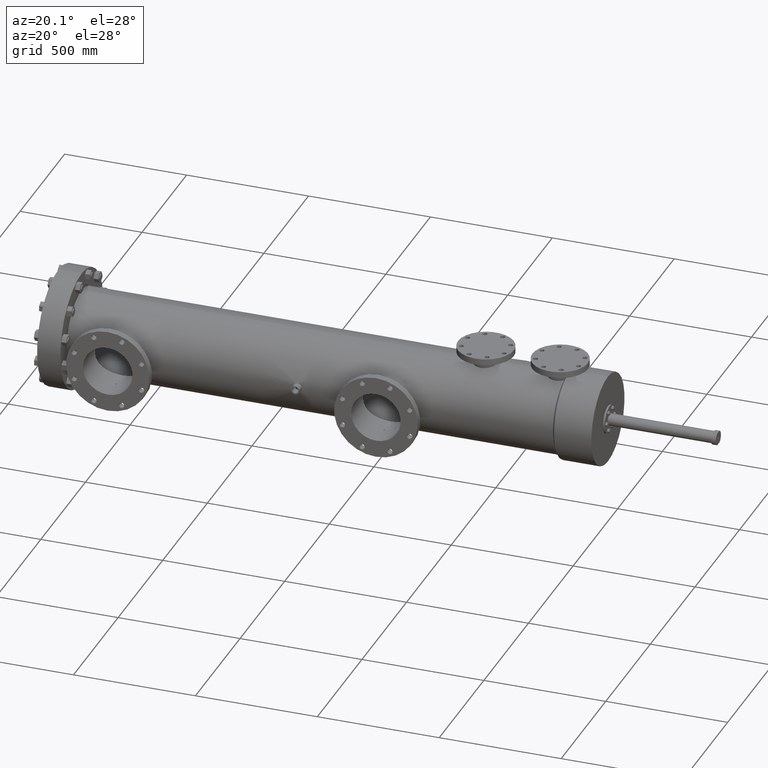
[diagram: clean part render]
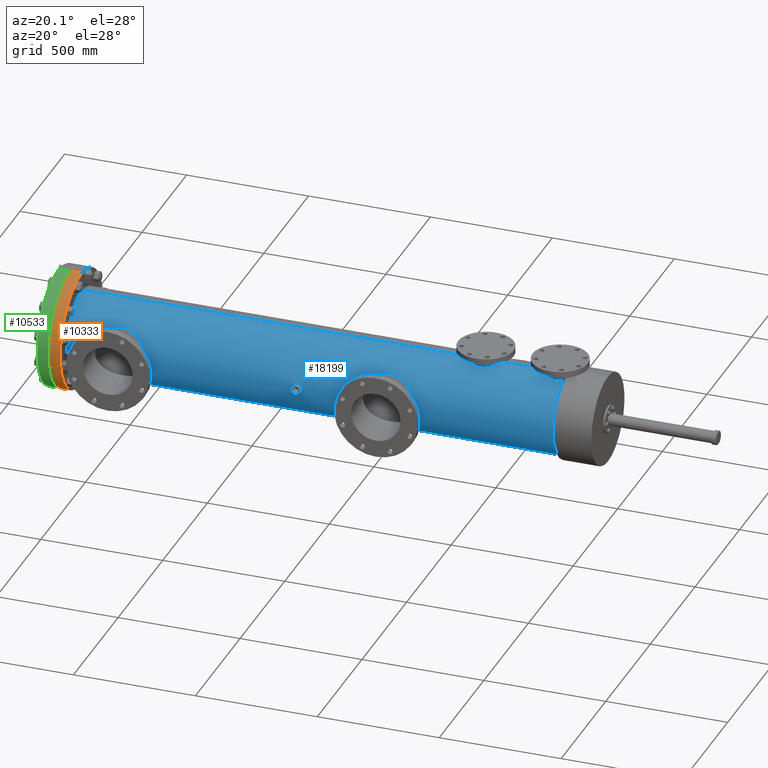
[diagram: same view with three faces highlighted in distinct colors, each labeled with its STEP entity id]
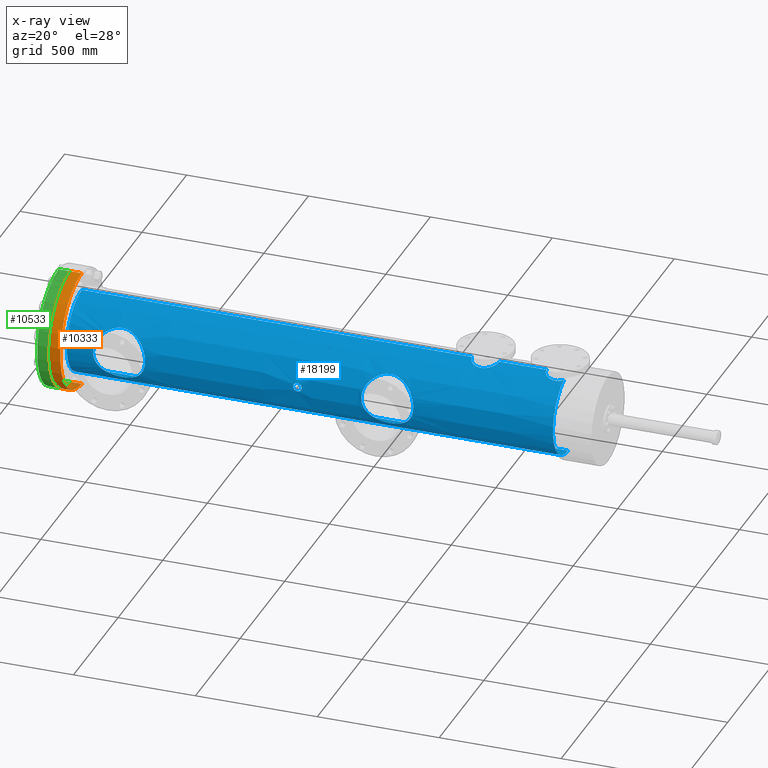
[diagram: x-ray of the same camera — body ghosted, the three highlighted faces saturated]
A machine part, auxiliary view with three faces highlighted in distinct colors.
The next image is the same camera in x-ray (body ghosted, the three faces saturated) — at least one of them is partly hidden behind the body in this view.
Their STEP definitions:

[orange] entity #10333 — the highlighted cylindrical surface (partial cylindrical patch) has radius 241.3 mm, axis along (-1, -0, -0).
#252 = CARTESIAN_POINT ( 'NONE',  ( 694.5685801483002706, 184.1613553879231517, -9.499999999999994671 ) ) ;
#318 = CARTESIAN_POINT ( 'NONE',  ( 696.5682505649399445, 184.1613553879231517, 0.0000000000000000000 ) ) ;
#1269 = DIRECTION ( 'NONE',  ( -1.000000000000000000, -0.0000000000000000000, -0.0000000000000000000 ) ) ;
#1271 = CYLINDRICAL_SURFACE ( 'NONE', #11449, 9.499999999999994671 ) ;
#1362 = AXIS2_PLACEMENT_3D ( 'NONE', #16789, #1269, #25027 ) ;
#3889 = ORIENTED_EDGE ( 'NONE', *, *, #7320, .T. ) ;
#4236 = CARTESIAN_POINT ( 'NONE',  ( 694.5685801483002706, 184.1613553879231517, 0.0000000000000000000 ) ) ;
#5038 = CARTESIAN_POINT ( 'NONE',  ( 694.5685801483002706, 184.1613553879231517, 9.499999999999994671 ) ) ;
#6073 = DIRECTION ( 'NONE',  ( 0.0000000000000000000, 0.0000000000000000000, 1.000000000000000000 ) ) ;
#6220 = DIRECTION ( 'NONE',  ( -1.000000000000000000, -0.0000000000000000000, -0.0000000000000000000 ) ) ;
#6227 = CARTESIAN_POINT ( 'NONE',  ( 696.5682505649399445, 184.1613553879231517, -9.499999999999994671 ) ) ;
#6391 = AXIS2_PLACEMENT_3D ( 'NONE', #318, #17725, #6073 ) ;
#7320 = EDGE_CURVE ( 'NONE', #22440, #21538, #18674, .T. ) ;
#8203 = DIRECTION ( 'NONE',  ( 0.0000000000000000000, 0.0000000000000000000, 1.000000000000000000 ) ) ;
#9714 = DIRECTION ( 'NONE',  ( -1.000000000000000000, -0.0000000000000000000, -0.0000000000000000000 ) ) ;
#10333 = ADVANCED_FACE ( 'NONE', ( #16682 ), #1271, .T. ) ;
#10373 = CIRCLE ( 'NONE', #6391, 9.499999999999994671 ) ;
#11449 = AXIS2_PLACEMENT_3D ( 'NONE', #4236, #6220, #8203 ) ;
#12066 = VECTOR ( 'NONE', #20764, 39.37007874015748143 ) ;
#14035 = ORIENTED_EDGE ( 'NONE', *, *, #21774, .F. ) ;
#14841 = CARTESIAN_POINT ( 'NONE',  ( 698.3182505649875793, 184.1613553879231517, -9.499999999999994671 ) ) ;
#16682 = FACE_OUTER_BOUND ( 'NONE', #21198, .T. ) ;
#16789 = CARTESIAN_POINT ( 'NONE',  ( 698.3182505649875793, 184.1613553879231517, 0.0000000000000000000 ) ) ;
#17181 = VERTEX_POINT ( 'NONE', #6227 ) ;
#17533 = VERTEX_POINT ( 'NONE', #20853 ) ;
#17587 = EDGE_CURVE ( 'NONE', #21538, #17533, #21338, .T. ) ;
#17725 = DIRECTION ( 'NONE',  ( -1.000000000000000000, -0.0000000000000000000, -0.0000000000000000000 ) ) ;
#18674 = CIRCLE ( 'NONE', #1362, 9.499999999999994671 ) ;
#19825 = LINE ( 'NONE', #252, #23811 ) ;
#20084 = ORIENTED_EDGE ( 'NONE', *, *, #17587, .T. ) ;
#20197 = EDGE_CURVE ( 'NONE', #17181, #17533, #10373, .T. ) ;
#20764 = DIRECTION ( 'NONE',  ( -1.000000000000000000, -0.0000000000000000000, -0.0000000000000000000 ) ) ;
#20853 = CARTESIAN_POINT ( 'NONE',  ( 696.5682505649399445, 184.1613553879231517, 9.499999999999994671 ) ) ;
#21198 = EDGE_LOOP ( 'NONE', ( #14035, #3889, #20084, #22802 ) ) ;
#21338 = LINE ( 'NONE', #5038, #12066 ) ;
#21538 = VERTEX_POINT ( 'NONE', #24681 ) ;
#21774 = EDGE_CURVE ( 'NONE', #22440, #17181, #19825, .T. ) ;
#22440 = VERTEX_POINT ( 'NONE', #14841 ) ;
#22802 = ORIENTED_EDGE ( 'NONE', *, *, #20197, .F. ) ;
#23811 = VECTOR ( 'NONE', #9714, 39.37007874015748143 ) ;
#24681 = CARTESIAN_POINT ( 'NONE',  ( 698.3182505649875793, 184.1613553879231517, 9.499999999999994671 ) ) ;
#25027 = DIRECTION ( 'NONE',  ( 0.0000000000000000000, 0.0000000000000000000, 1.000000000000000000 ) ) ;

[blue] entity #18199 — the highlighted conical surface has half-angle 0.002 deg.
#44 = CARTESIAN_POINT ( 'NONE',  ( 763.7099570006525937, 181.9666098048210188, 6.252691847458747176 ) ) ;
#58 = CARTESIAN_POINT ( 'NONE',  ( 735.9839227058560027, 177.5586178167785363, -0.5540006797627210489 ) ) ;
#69 = CARTESIAN_POINT ( 'NONE',  ( 754.2548384520098352, 177.5397786504904900, 0.2892845050418509367 ) ) ;
#70 = CARTESIAN_POINT ( 'NONE',  ( 698.3182505649875793, 184.1613553879231517, 6.624798784731736667 ) ) ;
#149 = EDGE_LOOP ( 'NONE', ( #17301, #12925 ) ) ;
#210 = CARTESIAN_POINT ( 'NONE',  ( 764.5388877301035109, 182.1927952486858544, 6.327669182480033960 ) ) ;
#218 = CARTESIAN_POINT ( 'NONE',  ( 734.8854725793964917, 177.5379349622167240, 0.1810363002817523548 ) ) ;
#222 = CARTESIAN_POINT ( 'NONE',  ( 736.1626320920054241, 177.5446033802511749, 0.3485460920719620215 ) ) ;
#312 = CARTESIAN_POINT ( 'NONE',  ( 736.1938131265496850, 177.5416810635879301, 0.2878383494447133706 ) ) ;
#320 = CARTESIAN_POINT ( 'NONE',  ( 775.6628105252508476, 181.9682006122414464, 6.253617992536046444 ) ) ;
#332 = CARTESIAN_POINT ( 'NONE',  ( 698.3182505649875793, 184.1613553879231517, -6.624798784731736667 ) ) ;
#341 = CARTESIAN_POINT ( 'NONE',  ( 749.1919865872974924, 178.9598147604275198, 4.105063281403425357 ) ) ;
#409 = CARTESIAN_POINT ( 'NONE',  ( 773.3751307912672246, 183.9613865057352768, 6.624704886758157940 ) ) ;
#428 = CARTESIAN_POINT ( 'NONE',  ( 749.1576542108581407, 178.9539380380625460, 4.097606776581013577 ) ) ;
#447 = CARTESIAN_POINT ( 'NONE',  ( 753.8749236517410282, 177.7735012610584704, 1.766765299865173500 ) ) ;
#495 = CARTESIAN_POINT ( 'NONE',  ( 776.3946889874108592, 182.1268381550432025, 6.307132382725860076 ) ) ;
#514 = CARTESIAN_POINT ( 'NONE',  ( 748.0102286812041257, 178.6373113164381721, 3.659708958959875247 ) ) ;
#565 = CARTESIAN_POINT ( 'NONE',  ( 761.6130104015750248, 183.1554727434680672, 6.549923375904469047 ) ) ;
#587 = CARTESIAN_POINT ( 'NONE',  ( 776.2049282928763887, 182.0617181366362729, 6.285654222467425889 ) ) ;
#605 = CARTESIAN_POINT ( 'NONE',  ( 747.6122669376923113, 178.4778653744267558, 3.407719169172965579 ) ) ;
#647 = CARTESIAN_POINT ( 'NONE',  ( 706.7556235020157374, 179.0351828873775446, 4.196850393700797710 ) ) ;
#671 = CARTESIAN_POINT ( 'NONE',  ( 774.5928356168211621, 182.1927673573459288, 6.327912858185344547 ) ) ;
#739 = ORIENTED_EDGE ( 'NONE', *, *, #11342, .T. ) ;
#773 = CARTESIAN_POINT ( 'NONE',  ( 745.9815190278798127, 177.6060424187359956, -0.9765317934448062287 ) ) ;
#814 = CARTESIAN_POINT ( 'NONE',  ( 704.6414598767023563, 178.6166567427450786, 3.626077347043764831 ) ) ;
#901 = CARTESIAN_POINT ( 'NONE',  ( 702.5867678898132453, 177.5541342116731016, -0.4890263406338693497 ) ) ;
#941 = CARTESIAN_POINT ( 'NONE',  ( 754.1201762186414044, 177.6241405298669065, 1.084158874098487990 ) ) ;
#988 = CARTESIAN_POINT ( 'NONE',  ( 702.9056693607760735, 177.7505678734108869, 1.671109991510093762 ) ) ;
#1028 = CARTESIAN_POINT ( 'NONE',  ( 745.8687171371751674, 177.5351435632777282, -0.1388413121986269982 ) ) ;
#1067 = CARTESIAN_POINT ( 'NONE',  ( 702.7881547523089694, 177.6793888686978846, -1.375438768259047428 ) ) ;
#1093 = CARTESIAN_POINT ( 'NONE',  ( 776.8291199031046972, 184.1613553879231517, -6.627073333241657593 ) ) ;
#1109 = CARTESIAN_POINT ( 'NONE',  ( 765.7621249540751478, 184.1249437048783477, 6.626752709905262329 ) ) ;
#1121 = CARTESIAN_POINT ( 'NONE',  ( 746.0981906112956494, 177.6781284515313644, -1.375543455547073357 ) ) ;
#1164 = CARTESIAN_POINT ( 'NONE',  ( 702.9628763920803749, 177.7847596054887163, 1.797165974665722477 ) ) ;
#1282 = CARTESIAN_POINT ( 'NONE',  ( 707.8705863577998798, 178.9157130413559287, -4.046647434061390491 ) ) ;
#1366 = CARTESIAN_POINT ( 'NONE',  ( 747.2894312506430197, 178.3305251464323078, -3.148136433467941586 ) ) ;
#1386 = CARTESIAN_POINT ( 'NONE',  ( 751.8235482011676822, 178.7418424903720791, -3.813343612203149657 ) ) ;
#1411 = CARTESIAN_POINT ( 'NONE',  ( 703.2393918020411547, 177.9453112986750511, -2.292208779725538381 ) ) ;
#1448 = CARTESIAN_POINT ( 'NONE',  ( 709.3686372473506481, 178.4077134886655074, -3.284838961841640703 ) ) ;
#1493 = CARTESIAN_POINT ( 'NONE',  ( 705.5738154655176686, 178.9008628091218327, -4.027171174102105233 ) ) ;
#1528 = CARTESIAN_POINT ( 'NONE',  ( 709.5244276013640956, 178.3358402611964664, 3.156750731966395662 ) ) ;
#1551 = CARTESIAN_POINT ( 'NONE',  ( 752.2955889437057522, 178.5705100719954999, -3.557937853033991349 ) ) ;
#1605 = CARTESIAN_POINT ( 'NONE',  ( 734.8708628903676754, 177.5364324716290412, -0.1135231147686501796 ) ) ;
#1614 = CARTESIAN_POINT ( 'NONE',  ( 709.1531192494139759, 178.5023828997583166, -3.445300762593576316 ) ) ;
#1619 = CARTESIAN_POINT ( 'NONE',  ( 735.8678701027656643, 177.5651038388807876, 0.6262170441610025451 ) ) ;
#1654 = CARTESIAN_POINT ( 'NONE',  ( 753.3395931786840265, 178.0775165056461731, 2.626627378003344671 ) ) ;
#1664 = ORIENTED_EDGE ( 'NONE', *, *, #18840, .F. ) ;
#1688 = CARTESIAN_POINT ( 'NONE',  ( 734.9550319916854733, 177.5446475875489512, 0.3487220232814888243 ) ) ;
#1696 = CARTESIAN_POINT ( 'NONE',  ( 710.7436212821494337, 177.6665084599100908, -1.309312641752071960 ) ) ;
#1721 = CARTESIAN_POINT ( 'NONE',  ( 750.3501728843214096, 179.0275632099823611, -4.189564349351632799 ) ) ;
#1740 = CARTESIAN_POINT ( 'NONE',  ( 752.5195635682141528, 178.4767535566233505, 3.405324754415917976 ) ) ;
#1778 = CARTESIAN_POINT ( 'NONE',  ( 710.5057953579085961, 177.8099688914815033, 1.888934933582958609 ) ) ;
#1828 = B_SPLINE_CURVE_WITH_KNOTS ( 'NONE', 3,
 ( #9167, #1109, #7052, #7371, #19122, #5033, #18863, #22990, #7286, #23068, #15386, #15309, #9584, #3490, #23391, #7448, #3573, #5539, #15545, #5712, #21607, #19508, #7697, #25441, #17618, #9761, #23558, #210, #8035, #13991, #1936, #17704, #16069, #19685, #15902, #2190, #44, #7954, #6137, #8117, #13834, #21953, #19856, #15725, #12089, #4073, #2273, #20028, #8205, #3909, #21696, #15823, #17798, #21783, #9923, #23732, #17879, #14248, #6588, #20212, #14427, #565, #2357, #14518, #14333, #4319, #8564, #2629, #18142, #18219, #10517, #6671, #2450, #6302 ),
 .UNSPECIFIED., .F., .F.,
 ( 4, 2, 2, 2, 2, 2, 2, 2, 2, 2, 2, 2, 2, 2, 2, 2, 2, 2, 2, 2, 2, 2, 2, 2, 2, 2, 2, 2, 2, 2, 2, 2, 2, 2, 2, 2, 4 ),
 ( 0.2217767342551546228, 0.2245201221016952520, 0.2272635099482358811, 0.2327502856413134202, 0.2382370613343909871, 0.2409804491809269533, 0.2437238370274629196, 0.2546973884136116695, 0.2574407762601444438, 0.2601841641066772737, 0.2656709397997494837, 0.2766444911858939593, 0.2793878790324304529, 0.2821312668789669464, 0.2876180425720491485, 0.2931048182651314060, 0.2958482061116721185, 0.2985915939582128864, 0.3095651453443856171, 0.3150519210374773116, 0.3177953088840284046, 0.3205386967305794421, 0.3315122481167936397, 0.3342556359633466756, 0.3369990238098997115, 0.3424857995030150537, 0.3479725751961303404, 0.3507159630426879837, 0.3534593508892456271, 0.3644329022754558833, 0.3699196779685628989, 0.3726630658151163789, 0.3754064536616698589, 0.3863800050478960468, 0.3891233928944543563, 0.3918667807410127213, 0.3973535564341293957 ),
 .UNSPECIFIED. ) ;
#1862 = CARTESIAN_POINT ( 'NONE',  ( 749.9940068915087750, 179.0331886223289644, -4.196391811907790981 ) ) ;
#1936 = CARTESIAN_POINT ( 'NONE',  ( 764.2751526903397234, 182.0831771008346607, 6.292451538185614979 ) ) ;
#1947 = CARTESIAN_POINT ( 'NONE',  ( 736.2556414614490450, 177.5354565586089564, -0.02247524736063220493 ) ) ;
#2068 = VERTEX_POINT ( 'NONE', #21517 ) ;
#2109 = CARTESIAN_POINT ( 'NONE',  ( 735.3345857774866090, 177.5684533448610125, -0.6601938602932745370 ) ) ;
#2190 = CARTESIAN_POINT ( 'NONE',  ( 763.8531904981017533, 181.9807017180546040, 6.257696832329146197 ) ) ;
#2198 = CARTESIAN_POINT ( 'NONE',  ( 735.2507201212582686, 177.5650659405873171, -0.6254748462666855913 ) ) ;
#2204 = CARTESIAN_POINT ( 'NONE',  ( 736.2511804442528955, 177.5359303422088715, 0.09101605829283684890 ) ) ;
#2273 = CARTESIAN_POINT ( 'NONE',  ( 762.6550333441012981, 182.1637198031623086, 6.318415463902363527 ) ) ;
#2292 = CARTESIAN_POINT ( 'NONE',  ( 776.1077695008854107, 182.0341063480162518, 6.276371641744266761 ) ) ;
#2308 = CARTESIAN_POINT ( 'NONE',  ( 745.9403464314125358, 177.5802857744139658, 0.7749651871104998868 ) ) ;
#2357 = CARTESIAN_POINT ( 'NONE',  ( 761.5966910590896077, 183.1877348557939911, 6.554799210019734979 ) ) ;
#2397 = ORIENTED_EDGE ( 'NONE', *, *, #5333, .F. ) ;
#2404 = CARTESIAN_POINT ( 'NONE',  ( 749.7824255674723872, 179.0276495428464330, 4.189643564498623185 ) ) ;
#2450 = CARTESIAN_POINT ( 'NONE',  ( 761.3685286145699820, 184.0893685739887076, 6.626625422459696324 ) ) ;
#2468 = CARTESIAN_POINT ( 'NONE',  ( 775.3094981616178529, 181.9791542042741810, 6.257441353787577931 ) ) ;
#2490 = CARTESIAN_POINT ( 'NONE',  ( 745.9826883963952469, 177.6067708939503405, 0.9812792601961114469 ) ) ;
#2564 = CARTESIAN_POINT ( 'NONE',  ( 773.9238319439253928, 182.6996916238764470, 6.464260809447115896 ) ) ;
#2580 = CARTESIAN_POINT ( 'NONE',  ( 707.4607588781310596, 178.9886460166544282, 4.139543643644732818 ) ) ;
#2588 = CARTESIAN_POINT ( 'NONE',  ( 747.8357523696259932, 178.5700316236987533, 3.556093556469786421 ) ) ;
#2629 = CARTESIAN_POINT ( 'NONE',  ( 761.4045705115938745, 183.7651056917121934, 6.614864048161908983 ) ) ;
#2651 = CARTESIAN_POINT ( 'NONE',  ( 774.9184057974849793, 182.0614874631848181, 6.285634244811541649 ) ) ;
#2673 = CARTESIAN_POINT ( 'NONE',  ( 746.2514051023243837, 177.7707940371991526, -1.756117729672929562 ) ) ;
#2796 = CARTESIAN_POINT ( 'NONE',  ( 703.5693154672462697, 178.1257422230485190, 2.731689423634612535 ) ) ;
#2837 = CARTESIAN_POINT ( 'NONE',  ( 746.4597272960620558, 177.8927698860099724, -2.147610332049469051 ) ) ;
#2878 = CARTESIAN_POINT ( 'NONE',  ( 703.7499934612168317, 178.2192490379318031, 2.929876923499896701 ) ) ;
#2962 = CARTESIAN_POINT ( 'NONE',  ( 702.6179090524929052, 177.5737406926146207, 0.7056202710910269849 ) ) ;
#3047 = CARTESIAN_POINT ( 'NONE',  ( 705.0004110760381764, 178.7443880803682816, 3.814604152678306548 ) ) ;
#3052 = CARTESIAN_POINT ( 'NONE',  ( 735.5587819821047333, 177.5722238347580344, -0.6968503937008417859 ) ) ;
#3156 = CARTESIAN_POINT ( 'NONE',  ( 735.5133193497480306, 177.5722251592070506, -0.6968503937008510007 ) ) ;
#3164 = CARTESIAN_POINT ( 'NONE',  ( 706.8985824862062373, 179.0351775346840952, -4.196850393700797710 ) ) ;
#3209 = CARTESIAN_POINT ( 'NONE',  ( 704.1856125989141901, 178.4278447077233238, -3.320652128205232145 ) ) ;
#3254 = CARTESIAN_POINT ( 'NONE',  ( 747.6033039650202454, 178.4739990611133180, -3.401284251822711102 ) ) ;
#3257 = CARTESIAN_POINT ( 'NONE',  ( 698.3182505649875793, 184.1613553879231517, 6.624798784731736667 ) ) ;
#3333 = CARTESIAN_POINT ( 'NONE',  ( 710.6852528523638739, 177.7021720670420279, -1.474038527895657147 ) ) ;
#3336 = VECTOR ( 'NONE', #20854, 39.37007874015748854 ) ;
#3342 = CARTESIAN_POINT ( 'NONE',  ( 748.6840373423924575, 178.8523233964306769, -3.965372774670719913 ) ) ;
#3381 = CARTESIAN_POINT ( 'NONE',  ( 704.6924895109619911, 178.6359323941311743, -3.655355332832163739 ) ) ;
#3422 = CARTESIAN_POINT ( 'NONE',  ( 710.6473048941612660, 177.7251904309742372, -1.571489997273463279 ) ) ;
#3427 = CARTESIAN_POINT ( 'NONE',  ( 747.0016607190191280, 178.1885543574458097, -2.871127025059857285 ) ) ;
#3432 = FACE_BOUND ( 'NONE', #6037, .T. ) ;
#3442 = CARTESIAN_POINT ( 'NONE',  ( 750.7694801686928940, 178.9872346955677358, -4.139789755087626588 ) ) ;
#3488 = CARTESIAN_POINT ( 'NONE',  ( 734.8798570805065538, 177.5373601373202632, 0.1587086232202948033 ) ) ;
#3490 = CARTESIAN_POINT ( 'NONE',  ( 765.5368070984720816, 183.1835844079870981, 6.555584488136903865 ) ) ;
#3494 = CARTESIAN_POINT ( 'NONE',  ( 710.7212829618271144, 177.6802089465983272, -1.375496644430610038 ) ) ;
#3503 = CARTESIAN_POINT ( 'NONE',  ( 735.9647353302606234, 177.5597456758819419, 0.5668522925312775573 ) ) ;
#3523 = CARTESIAN_POINT ( 'NONE',  ( 751.5740776184001106, 178.8175590935427692, -3.918731291187877108 ) ) ;
#3565 = CARTESIAN_POINT ( 'NONE',  ( 707.1115359061811887, 179.0233054796950967, 4.182327432340393614 ) ) ;
#3571 = CARTESIAN_POINT ( 'NONE',  ( 735.4450858310735839, 177.5712838975625232, 0.6878873652492107915 ) ) ;
#3573 = CARTESIAN_POINT ( 'NONE',  ( 765.3487635737557184, 182.8801805492236383, 6.501780344230761344 ) ) ;
#3578 = CARTESIAN_POINT ( 'NONE',  ( 710.0295350974407711, 178.0789149772092799, -2.626704101366389654 ) ) ;
#3583 = CARTESIAN_POINT ( 'NONE',  ( 749.4989490275623893, 179.0042638350824120, -4.160811765691757813 ) ) ;
#3617 = CARTESIAN_POINT ( 'NONE',  ( 750.1368286339787801, 179.0331886654802815, 4.196398396866187319 ) ) ;
#3643 = CARTESIAN_POINT ( 'NONE',  ( 706.7911838414810290, 179.0351815559214685, 4.196850393700797710 ) ) ;
#3650 = CARTESIAN_POINT ( 'NONE',  ( 735.2104712696885827, 177.5630649075744429, -0.6039872027095065654 ) ) ;
#3660 = CARTESIAN_POINT ( 'NONE',  ( 709.3159524677587342, 178.4314712794809736, -3.326075120598203316 ) ) ;
#3682 = CARTESIAN_POINT ( 'NONE',  ( 752.8333760062396323, 178.3349145842654195, -3.157676517960938956 ) ) ;
#3690 = LINE ( 'NONE', #70, #6466 ) ;
#3747 = CARTESIAN_POINT ( 'NONE',  ( 735.7390456502307643, 177.5697896697427041, 0.6735208399069007035 ) ) ;
#3836 = EDGE_CURVE ( 'NONE', #10583, #16541, #13542, .T. ) ;
#3909 = CARTESIAN_POINT ( 'NONE',  ( 762.4630707206736133, 182.2617607558127872, 6.348651872988742895 ) ) ;
#3992 = CARTESIAN_POINT ( 'NONE',  ( 761.3684605553864913, 184.1613553879231517, 6.626625420487942897 ) ) ;
#4073 = CARTESIAN_POINT ( 'NONE',  ( 762.6881931073345413, 182.1489545995601986, 6.313725232275384514 ) ) ;
#4075 = CARTESIAN_POINT ( 'NONE',  ( 735.1529118294623686, 177.5597742908165344, 0.5669100136776373811 ) ) ;
#4078 = CARTESIAN_POINT ( 'NONE',  ( 736.2377728707134565, 177.5373140106211167, 0.1584191115367590552 ) ) ;
#4151 = CARTESIAN_POINT ( 'NONE',  ( 734.8619620625746620, 177.5355010956268700, 0.04592313739975757009 ) ) ;
#4158 = CARTESIAN_POINT ( 'NONE',  ( 736.1120436604511497, 177.5490366778836346, -0.4242873028902793275 ) ) ;
#4247 = CARTESIAN_POINT ( 'NONE',  ( 707.7338071166367399, 178.9430711214187681, 4.081858155707125846 ) ) ;
#4248 = CARTESIAN_POINT ( 'NONE',  ( 736.0678006063801604, 177.5525969804122326, -0.4764747071120545296 ) ) ;
#4255 = CARTESIAN_POINT ( 'NONE',  ( 774.3761696044224436, 182.3133722057743284, 6.364406887205245944 ) ) ;
#4319 = CARTESIAN_POINT ( 'NONE',  ( 761.4822807435231198, 183.4509096869063853, 6.589785403201621428 ) ) ;
#4358 = CARTESIAN_POINT ( 'NONE',  ( 747.3002074150166436, 178.3361998169584126, 3.159693302790865133 ) ) ;
#4424 = CARTESIAN_POINT ( 'NONE',  ( 776.7471648980866803, 182.3090903793251982, 6.363235976165652730 ) ) ;
#4438 = DIRECTION ( 'NONE',  ( 0.0000000000000000000, 0.0000000000000000000, 1.000000000000000000 ) ) ;
#4482 = CARTESIAN_POINT ( 'NONE',  ( 706.4724560222188074, 179.0292708881390524, 4.189645650780765784 ) ) ;
#4537 = CARTESIAN_POINT ( 'NONE',  ( 746.9235085453929059, 178.1475714274583027, 2.782408907916365415 ) ) ;
#4617 = CARTESIAN_POINT ( 'NONE',  ( 745.9271985585422726, 177.5720291477227022, -0.6987479022786520222 ) ) ;
#4657 = CARTESIAN_POINT ( 'NONE',  ( 702.5968562762843703, 177.5604932644095300, 0.5652202238305897852 ) ) ;
#4742 = CARTESIAN_POINT ( 'NONE',  ( 702.6303607777246043, 177.5815581102346243, 0.7750421986795558160 ) ) ;
#4827 = CARTESIAN_POINT ( 'NONE',  ( 705.3788271970412325, 178.8551065161119595, 3.966993328986837319 ) ) ;
#4864 = CARTESIAN_POINT ( 'NONE',  ( 754.2261945003223218, 177.5578641426467641, 0.5682045320912116892 ) ) ;
#4873 = CARTESIAN_POINT ( 'NONE',  ( 745.8978660749427263, 177.5535674744551500, 0.4945880754318797701 ) ) ;
#4915 = CARTESIAN_POINT ( 'NONE',  ( 702.5659324643328318, 177.5409759539044501, 0.2830835972681620683 ) ) ;
#4993 = DIRECTION ( 'NONE',  ( -1.000000000000000000, -0.0000000000000000000, -0.0000000000000000000 ) ) ;
#5001 = CARTESIAN_POINT ( 'NONE',  ( 705.5765453945555237, 178.9017626913025936, 4.028410452181040213 ) ) ;
#5033 = CARTESIAN_POINT ( 'NONE',  ( 765.7439049933195747, 183.8717162107843421, 6.620810364789618596 ) ) ;
#5117 = CARTESIAN_POINT ( 'NONE',  ( 735.4680749123335772, 177.5717558836482226, -0.6924445274903352487 ) ) ;
#5176 = CARTESIAN_POINT ( 'NONE',  ( 703.0983002490748959, 177.8643670869289508, -2.058812267397211571 ) ) ;
#5215 = CARTESIAN_POINT ( 'NONE',  ( 707.6658555980457095, 178.9554061813685166, -4.097555672245952962 ) ) ;
#5260 = CARTESIAN_POINT ( 'NONE',  ( 703.4328203695604316, 178.0529794066622458, -2.567152888266971189 ) ) ;
#5296 = CARTESIAN_POINT ( 'NONE',  ( 710.3763239312253290, 177.8855491946490304, 2.126591764763730907 ) ) ;
#5302 = CARTESIAN_POINT ( 'NONE',  ( 748.8838338688350404, 178.8992868616644500, -4.027176625830588996 ) ) ;
#5314 = CARTESIAN_POINT ( 'NONE',  ( 753.6869137072308149, 177.8838869677309162, -2.125645124309016420 ) ) ;
#5333 = EDGE_CURVE ( 'NONE', #25156, #9335, #18828, .T. ) ;
#5334 = CARTESIAN_POINT ( 'NONE',  ( 705.6748957633274131, 178.9226435730036826, -4.055465860938591405 ) ) ;
#5376 = CARTESIAN_POINT ( 'NONE',  ( 710.0295887970928561, 178.0788854824758403, 2.626632648662797553 ) ) ;
#5401 = CARTESIAN_POINT ( 'NONE',  ( 752.4631271447285599, 178.5009106021298066, -3.445295067813475498 ) ) ;
#5460 = CARTESIAN_POINT ( 'NONE',  ( 710.8525364558495312, 177.5990546158313350, 0.9131219240574864893 ) ) ;
#5481 = CARTESIAN_POINT ( 'NONE',  ( 752.9320428211335638, 178.2872552675820543, -3.068375055365319959 ) ) ;
#5503 = CARTESIAN_POINT ( 'NONE',  ( 750.7707132293395489, 178.9870454133621820, 4.139551514902442442 ) ) ;
#5538 = CARTESIAN_POINT ( 'NONE',  ( 735.0331828079325760, 177.5513886149795155, -0.4598416979067849186 ) ) ;
#5539 = CARTESIAN_POINT ( 'NONE',  ( 765.3058553369646688, 182.8225580965050767, 6.490158853913505332 ) ) ;
#5546 = CARTESIAN_POINT ( 'NONE',  ( 710.9173676930773809, 177.5583836336326158, -0.5600368239273578741 ) ) ;
#5551 = CARTESIAN_POINT ( 'NONE',  ( 735.9832397763497056, 177.5585779736694576, 0.5531377762971073642 ) ) ;
#5555 = FACE_BOUND ( 'NONE', #18869, .T. ) ;
#5616 = CARTESIAN_POINT ( 'NONE',  ( 706.8982374940455884, 179.0333183967190394, 4.194578700992471099 ) ) ;
#5625 = CARTESIAN_POINT ( 'NONE',  ( 735.0338828190743925, 177.5514427359641161, 0.4605940650921806490 ) ) ;
#5629 = CARTESIAN_POINT ( 'NONE',  ( 710.9435069540548966, 177.5418678174806644, -0.2765167307993237622 ) ) ;
#5656 = CARTESIAN_POINT ( 'NONE',  ( 753.9832488470369753, 177.7082010232193454, -1.506870611404393490 ) ) ;
#5674 = CARTESIAN_POINT ( 'NONE',  ( 750.1011886381764953, 179.0335600387765567, 4.196850393700793269 ) ) ;
#5712 = CARTESIAN_POINT ( 'NONE',  ( 765.2151286045905181, 182.7110546621392189, 6.466334320042895989 ) ) ;
#5746 = CIRCLE ( 'NONE', #7263, 6.627073333241656705 ) ;
#5767 = CARTESIAN_POINT ( 'NONE',  ( 752.8344053023279230, 178.3344239482308922, 3.156769943473807682 ) ) ;
#5844 = CARTESIAN_POINT ( 'NONE',  ( 750.4215204023811339, 179.0216886738506048, 4.182328613457447553 ) ) ;
#5890 = CARTESIAN_POINT ( 'NONE',  ( 736.2333095608178155, 177.5377745801077651, -0.1807973478412597257 ) ) ;
#5972 = EDGE_CURVE ( 'NONE', #14152, #13300, #24265, .T. ) ;
#5977 = CARTESIAN_POINT ( 'NONE',  ( 736.0837000264948529, 177.5514106010082003, 0.4605687512119331917 ) ) ;
#6019 = CARTESIAN_POINT ( 'NONE',  ( 706.7556235020157374, 179.0351828873775446, -4.196850393700797710 ) ) ;
#6037 = EDGE_LOOP ( 'NONE', ( #2397, #25247 ) ) ;
#6060 = CARTESIAN_POINT ( 'NONE',  ( 735.5357792701157678, 177.5722245048890215, 0.6968503937008416749 ) ) ;
#6064 = CARTESIAN_POINT ( 'NONE',  ( 735.9078017815271551, 177.5630073381936427, -0.6035808521881880218 ) ) ;
#6121 = ORIENTED_EDGE ( 'NONE', *, *, #13643, .T. ) ;
#6137 = CARTESIAN_POINT ( 'NONE',  ( 763.4212601313071218, 181.9700955141522059, 6.253910051396339931 ) ) ;
#6142 = CARTESIAN_POINT ( 'NONE',  ( 734.9549174051866203, 177.5446371786171085, -0.3485285977703945770 ) ) ;
#6149 = CARTESIAN_POINT ( 'NONE',  ( 736.1939111923027212, 177.5416717211210198, -0.2876352493791212162 ) ) ;
#6160 = CARTESIAN_POINT ( 'NONE',  ( 773.4372796668458250, 183.6142906260757286, 6.604533357133954397 ) ) ;
#6179 = CARTESIAN_POINT ( 'NONE',  ( 746.2728486283573375, 177.7834395008412969, 1.797107315396966332 ) ) ;
#6229 = CARTESIAN_POINT ( 'NONE',  ( 736.1255577141727144, 177.5478881266042208, -0.4060549502304692804 ) ) ;
#6241 = CARTESIAN_POINT ( 'NONE',  ( 773.4252441650050969, 183.6631761464212218, 6.608409993309925845 ) ) ;
#6254 = CARTESIAN_POINT ( 'NONE',  ( 749.5027096988947051, 179.0046607889149755, 4.161302959317366046 ) ) ;
#6302 = CARTESIAN_POINT ( 'NONE',  ( 761.3684605553864913, 184.1613553879231517, 6.626625420487942897 ) ) ;
#6316 = CARTESIAN_POINT ( 'NONE',  ( 735.5587819821047333, 177.5722238347580344, -0.6968503937008417859 ) ) ;
#6328 = CARTESIAN_POINT ( 'NONE',  ( 774.7296642403007354, 182.1314391998409405, 6.308472920854085508 ) ) ;
#6352 = CARTESIAN_POINT ( 'NONE',  ( 747.7790504556940050, 178.5471544156617369, 3.519890015868750943 ) ) ;
#6466 = VECTOR ( 'NONE', #21812, 39.37007874015748854 ) ;
#6539 = CARTESIAN_POINT ( 'NONE',  ( 747.0137126661466027, 178.1942991127549476, 2.881646292668616383 ) ) ;
#6558 = CARTESIAN_POINT ( 'NONE',  ( 765.7621593791217265, 184.1613553879231517, 6.626752710902593435 ) ) ;
#6588 = CARTESIAN_POINT ( 'NONE',  ( 761.8204454434107902, 182.8210742606892723, 6.490800737251106511 ) ) ;
#6623 = CARTESIAN_POINT ( 'NONE',  ( 746.5128222855631748, 177.9232096071716285, -2.235131792659382999 ) ) ;
#6664 = CARTESIAN_POINT ( 'NONE',  ( 705.8819775464996837, 178.9614117877307535, 4.105061402771039702 ) ) ;
#6671 = CARTESIAN_POINT ( 'NONE',  ( 761.3721262623975008, 184.0173090855973612, 6.625452839847655540 ) ) ;
#6715 = CARTESIAN_POINT ( 'NONE',  ( 745.8757008049287833, 177.5395734299642925, -0.2791017874260263154 ) ) ;
#6751 = CARTESIAN_POINT ( 'NONE',  ( 702.6018031139132063, 177.5636090762852746, 0.6004883944794889850 ) ) ;
#6824 = FACE_BOUND ( 'NONE', #149, .T. ) ;
#6842 = CARTESIAN_POINT ( 'NONE',  ( 704.5257519258481125, 178.5715183544259048, 3.556093012723499758 ) ) ;
#6926 = CARTESIAN_POINT ( 'NONE',  ( 702.6362419627347435, 177.5852366836028580, -0.8034279434134706799 ) ) ;
#6971 = CARTESIAN_POINT ( 'NONE',  ( 745.9055717424718068, 177.5584289804368439, -0.5590313689174510881 ) ) ;
#7016 = CARTESIAN_POINT ( 'NONE',  ( 702.5656932298320498, 177.5408242039865456, -0.2789984620484637357 ) ) ;
#7052 = CARTESIAN_POINT ( 'NONE',  ( 765.7611776521424645, 184.0883395372464975, 6.626449949300773135 ) ) ;
#7101 = CARTESIAN_POINT ( 'NONE',  ( 703.9794016707724040, 178.3319370244931577, -3.148110587580682296 ) ) ;
#7131 = CARTESIAN_POINT ( 'NONE',  ( 735.4005448561982803, 177.5703671178549428, -0.6790347299108558943 ) ) ;
#7176 = CARTESIAN_POINT ( 'NONE',  ( 703.8807005646934840, 178.2842936384395784, -3.058239041077002618 ) ) ;
#7220 = CARTESIAN_POINT ( 'NONE',  ( 748.3034306086295828, 178.7406014380755721, -3.811413069140670906 ) ) ;
#7254 = CARTESIAN_POINT ( 'NONE',  ( 706.0501884225865297, 178.9886655209745641, -4.139503493482318497 ) ) ;
#7263 = AXIS2_PLACEMENT_3D ( 'NONE', #18090, #16365, #4438 ) ;
#7286 = CARTESIAN_POINT ( 'NONE',  ( 765.6871618749755726, 183.5897462863877365, 6.602416491861659686 ) ) ;
#7290 = CARTESIAN_POINT ( 'NONE',  ( 710.5667477827701077, 177.7737172746746523, -1.762965164698932385 ) ) ;
#7317 = CARTESIAN_POINT ( 'NONE',  ( 754.1156430505930075, 177.6270287797977971, -1.109228928818584592 ) ) ;
#7335 = CARTESIAN_POINT ( 'NONE',  ( 706.3995277878091201, 179.0233192050367563, -4.182311615871764587 ) ) ;
#7371 = CARTESIAN_POINT ( 'NONE',  ( 765.7574896702946035, 184.0157097524761411, 6.625251404878365058 ) ) ;
#7377 = CARTESIAN_POINT ( 'NONE',  ( 710.5071055358175727, 177.8091976762812862, -1.886396710406419874 ) ) ;
#7420 = CARTESIAN_POINT ( 'NONE',  ( 703.1497238992501480, 177.8940942529968652, -2.147604496059940971 ) ) ;
#7447 = CARTESIAN_POINT ( 'NONE',  ( 734.8674814715413959, 177.5360794936007380, -0.09072287662855491042 ) ) ;
#7448 = CARTESIAN_POINT ( 'NONE',  ( 765.3694486837508748, 182.9094332565836680, 6.507480637604564855 ) ) ;
#7455 = CARTESIAN_POINT ( 'NONE',  ( 710.7715699993308363, 177.6492938803636434, 1.219403054490064031 ) ) ;
#7495 = CARTESIAN_POINT ( 'NONE',  ( 753.1213424978539024, 178.1925859564589416, 2.879897835397924322 ) ) ;
#7529 = CARTESIAN_POINT ( 'NONE',  ( 735.2496492952680001, 177.5651201717942627, 0.6262003093787552599 ) ) ;
#7537 = CARTESIAN_POINT ( 'NONE',  ( 710.9509360638051021, 177.5371652342580546, -0.1340926047235065366 ) ) ;
#7542 = CARTESIAN_POINT ( 'NONE',  ( 736.0186701154657385, 177.5562046810374568, 0.5240503062266418377 ) ) ;
#7597 = CARTESIAN_POINT ( 'NONE',  ( 706.9340292101891237, 179.0321959643360969, 4.193208239239549329 ) ) ;
#7605 = DIRECTION ( 'NONE',  ( 0.9999999995803368069, 3.547940017089211670E-21, 2.897112881493199885E-05 ) ) ;
#7608 = CARTESIAN_POINT ( 'NONE',  ( 734.9333433826577675, 177.5426340164538317, -0.3081414756932293608 ) ) ;
#7613 = CARTESIAN_POINT ( 'NONE',  ( 754.0916102272088892, 177.6418209777624782, 1.185841002206296846 ) ) ;
#7616 = CARTESIAN_POINT ( 'NONE',  ( 710.6717977064197385, 177.7104835419472408, 1.515191303211157470 ) ) ;
#7623 = CARTESIAN_POINT ( 'NONE',  ( 749.8868259782148016, 179.0305746995919094, -4.193191039937242515 ) ) ;
#7641 = CARTESIAN_POINT ( 'NONE',  ( 752.5182718562296031, 178.4773113716621253, -3.406255623476134975 ) ) ;
#7666 = CARTESIAN_POINT ( 'NONE',  ( 752.4645146950857679, 178.5003217752642115, 3.444326905804129701 ) ) ;
#7697 = CARTESIAN_POINT ( 'NONE',  ( 764.9062387563279799, 182.4173597876071824, 6.393663043682710878 ) ) ;
#7739 = CARTESIAN_POINT ( 'NONE',  ( 698.3182505649875793, 184.1613553879231517, 0.0000000000000000000 ) ) ;
#7829 = CARTESIAN_POINT ( 'NONE',  ( 752.6798533526688288, 178.4057160986552049, 3.283870351100931284 ) ) ;
#7860 = CARTESIAN_POINT ( 'NONE',  ( 707.0408310278733097, 179.0277371176968870, 4.187755093509624160 ) ) ;
#7880 = CARTESIAN_POINT ( 'NONE',  ( 736.1624746646332369, 177.5446178145211036, -0.3488232518601491194 ) ) ;
#7930 = B_SPLINE_CURVE_WITH_KNOTS ( 'NONE', 3,
 ( #647, #16147, #4482, #8196, #24745, #6664, #16761, #14933, #10600, #18649, #5001, #4827, #14595, #3047, #20550, #18829, #814, #6842, #24661, #12953, #10770, #16591, #10947, #2878, #16675, #18569, #20724, #2796, #14680, #8880, #20641, #16851, #12704, #24412, #8803, #1164, #14760, #8725, #988, #22544, #10854, #12615, #24580, #4742, #2962, #6751, #4657, #24493, #22630, #4915, #10685, #18483, #7016, #901, #12786, #20466, #18739, #22712, #6926, #8641, #12876, #1067, #20811, #8967, #22793, #22462, #5176, #21226, #7420, #11194, #1411, #13293, #5260, #23113, #19172, #18999, #7176, #7101, #9384, #3209, #15186, #19085, #23037, #19243, #3381, #17092, #17014, #9135, #21060, #16929, #1493, #17176, #5334, #15276, #11365, #7254, #13208, #7335, #9219, #21139, #25004, #9302, #11284, #25083 ),
 .UNSPECIFIED., .F., .F.,
 ( 4, 2, 2, 2, 2, 2, 2, 2, 2, 2, 2, 2, 2, 2, 2, 2, 2, 2, 2, 2, 2, 2, 2, 2, 2, 2, 2, 2, 2, 2, 2, 2, 2, 2, 2, 2, 2, 2, 2, 2, 2, 2, 2, 2, 2, 2, 2, 2, 2, 2, 2, 4 ),
 ( 0.4250573000274426860, 0.4359283477855961930, 0.4467993955437497000, 0.4495171574832853012, 0.4522349194228208469, 0.4576704433018818907, 0.4685414910599933203, 0.4794125388181047498, 0.4848480626971604646, 0.4902835865762161793, 0.5011546343343191712, 0.5120256820924221630, 0.5174612059714700507, 0.5201789679109906084, 0.5228967298505111660, 0.5337677776085933967, 0.5446388253666756274, 0.5500743492457191852, 0.5527921111852414082, 0.5555098731247635202, 0.5663809208828410879, 0.5772519686409186557, 0.5826874925199563293, 0.5854052544594743335, 0.5881230163989922266, 0.5989940641570650204, 0.6098651119151378142, 0.6153006357941737114, 0.6180183977336907164, 0.6207361596732077214, 0.6316072074312739648, 0.6424782551893402083, 0.6533493029474064517, 0.6560670648869246779, 0.6587848268264427931, 0.6642203507054791345, 0.6750913984635467102, 0.6859624462216145080, 0.6913979701006487399, 0.6968334939796831939, 0.7077045417377594294, 0.7131400656167976582, 0.7185755894958356649, 0.7294466372539030186, 0.7403176850119703722, 0.7430354469514870441, 0.7457532088910037160, 0.7511887327700370598, 0.7620597805281141834, 0.7674953044071528563, 0.7702130663466720817, 0.7729308282861914181 ),
 .UNSPECIFIED. ) ;
#7954 = CARTESIAN_POINT ( 'NONE',  ( 763.4936212106248377, 181.9665681326391677, 6.252670577576785682 ) ) ;
#8035 = CARTESIAN_POINT ( 'NONE',  ( 764.4744047377766947, 182.1622335801806685, 6.318045390304683373 ) ) ;
#8047 = CARTESIAN_POINT ( 'NONE',  ( 735.7398784668387179, 177.5698820012538874, -0.6744506734844520901 ) ) ;
#8117 = CARTESIAN_POINT ( 'NONE',  ( 763.3123318991008546, 181.9808914092728003, 6.257675463139608318 ) ) ;
#8138 = CARTESIAN_POINT ( 'NONE',  ( 774.2148996909287462, 182.4296752306820508, 6.396831452538092933 ) ) ;
#8154 = CARTESIAN_POINT ( 'NONE',  ( 746.9458699864808295, 178.1592256865353079, 2.807456893714507462 ) ) ;
#8196 = CARTESIAN_POINT ( 'NONE',  ( 706.1927382946291800, 179.0062763513836330, 4.161306855307151054 ) ) ;
#8205 = CARTESIAN_POINT ( 'NONE',  ( 762.5577716492458649, 182.2109206979327496, 6.333146101192833832 ) ) ;
#8229 = CARTESIAN_POINT ( 'NONE',  ( 775.4610226180977861, 181.9689069140860056, 6.253858508689269513 ) ) ;
#8318 = CARTESIAN_POINT ( 'NONE',  ( 776.4858683049445744, 182.1664575567607187, 6.319859533150832931 ) ) ;
#8337 = CARTESIAN_POINT ( 'NONE',  ( 746.5175331063060185, 177.9261387830681826, 2.245611807666871851 ) ) ;
#8424 = CARTESIAN_POINT ( 'NONE',  ( 749.0891273437832751, 178.9415559992118290, 4.081818808134665133 ) ) ;
#8491 = CARTESIAN_POINT ( 'NONE',  ( 774.0998406063935136, 182.5257645223729526, 6.422080352323643382 ) ) ;
#8513 = CARTESIAN_POINT ( 'NONE',  ( 748.6887955133527157, 178.8535321920121817, 3.966982861889823742 ) ) ;
#8564 = CARTESIAN_POINT ( 'NONE',  ( 761.4402692085260469, 183.5878689343432768, 6.603294270941580280 ) ) ;
#8641 = CARTESIAN_POINT ( 'NONE',  ( 702.6715058066998836, 177.6073024549232571, -0.9764711296452608380 ) ) ;
#8710 = CARTESIAN_POINT ( 'NONE',  ( 753.6863099918321041, 177.8842326918440051, 2.126614965322177309 ) ) ;
#8725 = CARTESIAN_POINT ( 'NONE',  ( 702.9196334149469294, 177.7589448646615722, 1.702918243197926396 ) ) ;
#8726 = ORIENTED_EDGE ( 'NONE', *, *, #18743, .F. ) ;
#8803 = CARTESIAN_POINT ( 'NONE',  ( 703.0078220344785223, 177.8114231177005706, 1.890044761448055333 ) ) ;
#8880 = CARTESIAN_POINT ( 'NONE',  ( 703.4398197557912908, 178.0567981078933428, 2.576271899707424318 ) ) ;
#8967 = CARTESIAN_POINT ( 'NONE',  ( 702.9413656745653043, 177.7720714810682807, -1.756032795551457415 ) ) ;
#9013 = CARTESIAN_POINT ( 'NONE',  ( 747.8278443974730862, 178.5668740087172637, -3.551126445369393814 ) ) ;
#9135 = CARTESIAN_POINT ( 'NONE',  ( 705.2448221647687205, 178.8185807545805233, -3.917865872201187205 ) ) ;
#9167 = CARTESIAN_POINT ( 'NONE',  ( 765.7621593791217265, 184.1613553879231517, 6.626752710902593435 ) ) ;
#9173 = CARTESIAN_POINT ( 'NONE',  ( 708.2640329091103695, 178.8191274637245272, -3.918748207817272622 ) ) ;
#9181 = CARTESIAN_POINT ( 'NONE',  ( 748.5548745832345503, 178.8170398632345552, -3.917886047392927562 ) ) ;
#9219 = CARTESIAN_POINT ( 'NONE',  ( 706.4701745847115717, 179.0277435593265238, -4.187736832350938521 ) ) ;
#9250 = CARTESIAN_POINT ( 'NONE',  ( 754.1625385293116324, 177.5977865623516720, 0.9131115904358733104 ) ) ;
#9257 = CARTESIAN_POINT ( 'NONE',  ( 708.8707610251125288, 178.6169734580978741, -3.627361518436849952 ) ) ;
#9284 = CARTESIAN_POINT ( 'NONE',  ( 754.2450901643849193, 177.5459332373997086, -0.3832412706837314276 ) ) ;
#9302 = CARTESIAN_POINT ( 'NONE',  ( 706.6840215376408878, 179.0348102837507724, -4.196392133601304586 ) ) ;
#9335 = VERTEX_POINT ( 'NONE', #17143 ) ;
#9340 = CARTESIAN_POINT ( 'NONE',  ( 709.6229532479297859, 178.2882240439899419, 3.067515178039288415 ) ) ;
#9362 = CARTESIAN_POINT ( 'NONE',  ( 754.2557103031377892, 177.5392178284579359, -0.2408215855183126197 ) ) ;
#9384 = CARTESIAN_POINT ( 'NONE',  ( 704.0299219270996218, 178.3558468011259777, -3.191964519615436480 ) ) ;
#9412 = CARTESIAN_POINT ( 'NONE',  ( 735.2096452450479092, 177.5630986913864717, 0.6047911233552027976 ) ) ;
#9420 = CARTESIAN_POINT ( 'NONE',  ( 710.9350891917671333, 177.5471906793313224, -0.3832524570728817470 ) ) ;
#9429 = CARTESIAN_POINT ( 'NONE',  ( 750.0656234997047704, 179.0335613702432909, -4.196850393700797710 ) ) ;
#9433 = ORIENTED_EDGE ( 'NONE', *, *, #23518, .T. ) ;
#9445 = CARTESIAN_POINT ( 'NONE',  ( 753.3813822951904058, 178.0549128989774772, -2.573693693428871665 ) ) ;
#9497 = CARTESIAN_POINT ( 'NONE',  ( 706.7556235020157374, 179.0351828873775446, 4.196850393700797710 ) ) ;
#9503 = CARTESIAN_POINT ( 'NONE',  ( 735.0818450026706614, 177.5550191298296170, -0.5085849887725992780 ) ) ;
#9511 = CARTESIAN_POINT ( 'NONE',  ( 710.8949309179271268, 177.5725305122468853, 0.7066993938046549628 ) ) ;
#9550 = CARTESIAN_POINT ( 'NONE',  ( 750.6321761789350830, 179.0042356754967443, 4.160829163214375903 ) ) ;
#9582 = CARTESIAN_POINT ( 'NONE',  ( 735.3347471704986447, 177.5684590292011933, 0.6602507779924606801 ) ) ;
#9584 = CARTESIAN_POINT ( 'NONE',  ( 765.6062263723539445, 183.3497316711098506, 6.576943135266763107 ) ) ;
#9593 = CARTESIAN_POINT ( 'NONE',  ( 710.5649419810532663, 177.7747918808946679, 1.766725165334696701 ) ) ;
#9598 = CARTESIAN_POINT ( 'NONE',  ( 735.6500816350895775, 177.5717393488225468, 0.6923365948947962645 ) ) ;
#9615 = CARTESIAN_POINT ( 'NONE',  ( 750.2086083383642290, 179.0335560172611906, -4.196850393700797710 ) ) ;
#9635 = CARTESIAN_POINT ( 'NONE',  ( 750.3508262063343182, 179.0261180314013529, 4.187755192098854273 ) ) ;
#9682 = CARTESIAN_POINT ( 'NONE',  ( 749.9224775244495049, 179.0316937281015157, -4.194561050620722931 ) ) ;
#9718 = DIRECTION ( 'NONE',  ( 1.000000000000000000, 0.0000000000000000000, 0.0000000000000000000 ) ) ;
#9744 = CARTESIAN_POINT ( 'NONE',  ( 750.0656234997047704, 179.0335613702432909, -4.196850393700797710 ) ) ;
#9761 = CARTESIAN_POINT ( 'NONE',  ( 764.6646112036992236, 182.2610711671234469, 6.348442422252188244 ) ) ;
#9804 = CARTESIAN_POINT ( 'NONE',  ( 750.0656234997047704, 179.0335613702432909, 4.196850393700797710 ) ) ;
#9811 = CARTESIAN_POINT ( 'NONE',  ( 750.0656234997047704, 179.0335613702432909, 4.196850393700797710 ) ) ;
#9856 = CARTESIAN_POINT ( 'NONE',  ( 736.1507731903517424, 177.5456787212906704, -0.3683229051069211724 ) ) ;
#9923 = CARTESIAN_POINT ( 'NONE',  ( 762.1165201731123489, 182.5116300613105125, 6.418058715010834803 ) ) ;
#9938 = CARTESIAN_POINT ( 'NONE',  ( 735.9273196897621574, 177.5619416720027459, -0.5918578025825337319 ) ) ;
#10007 = CARTESIAN_POINT ( 'NONE',  ( 735.8674300779515534, 177.5650207759896375, -0.6251887862454036382 ) ) ;
#10127 = CARTESIAN_POINT ( 'NONE',  ( 746.0175639722122014, 177.6284813158197551, 1.116261789113096148 ) ) ;
#10187 = CARTESIAN_POINT ( 'NONE',  ( 773.6369991578969803, 183.1055512667743130, 6.542914075157328924 ) ) ;
#10279 = CARTESIAN_POINT ( 'NONE',  ( 774.4607175553439902, 182.2616977913769745, 6.349078940723797082 ) ) ;
#10286 = VERTEX_POINT ( 'NONE', #3992 ) ;
#10292 = CARTESIAN_POINT ( 'NONE',  ( 746.3177879537863646, 177.8100939376494978, 1.889976917993465122 ) ) ;
#10360 = CARTESIAN_POINT ( 'NONE',  ( 774.1373437713485828, 182.4929571734054434, 6.413625060509226650 ) ) ;
#10448 = CARTESIAN_POINT ( 'NONE',  ( 775.2101892853839900, 181.9931292241185758, 6.262327679037110961 ) ) ;
#10517 = CARTESIAN_POINT ( 'NONE',  ( 761.3829294111911850, 183.9091086798502204, 6.621921459594406478 ) ) ;
#10558 = CARTESIAN_POINT ( 'NONE',  ( 745.9462449081764817, 177.5839744816381938, -0.8034434641552404832 ) ) ;
#10583 = VERTEX_POINT ( 'NONE', #3052 ) ;
#10600 = CARTESIAN_POINT ( 'NONE',  ( 705.7449431119936207, 178.9366419946620681, 4.073487594386635990 ) ) ;
#10685 = CARTESIAN_POINT ( 'NONE',  ( 702.5588334855142421, 177.5364719973296133, 0.1423123495017101781 ) ) ;
#10727 = CARTESIAN_POINT ( 'NONE',  ( 745.8938317960084987, 177.5510219560932796, 0.4593076876158136979 ) ) ;
#10770 = CARTESIAN_POINT ( 'NONE',  ( 704.1955395611028052, 178.4322721420923301, 3.328236210970582309 ) ) ;
#10817 = CARTESIAN_POINT ( 'NONE',  ( 745.8759252495601686, 177.5397157930651133, 0.2829899310551395319 ) ) ;
#10854 = CARTESIAN_POINT ( 'NONE',  ( 702.7902137670502043, 177.6806503905439172, 1.381430669715480342 ) ) ;
#10895 = CARTESIAN_POINT ( 'NONE',  ( 706.7556235020157374, 179.0351828873775446, -4.196850393700797710 ) ) ;
#10905 = CARTESIAN_POINT ( 'NONE',  ( 745.9214553463773427, 177.5684202963280995, -0.6638312367233142330 ) ) ;
#10947 = CARTESIAN_POINT ( 'NONE',  ( 703.8917429953298779, 178.2900984974826315, 3.070747739257479569 ) ) ;
#10978 = CARTESIAN_POINT ( 'NONE',  ( 735.5587819821047333, 177.5722238347580344, -0.6968503937008417859 ) ) ;
#11070 = CARTESIAN_POINT ( 'NONE',  ( 746.9123567068558032, 178.1421346544732671, -2.772761095498160078 ) ) ;
#11134 = ORIENTED_EDGE ( 'NONE', *, *, #17603, .F. ) ;
#11154 = CARTESIAN_POINT ( 'NONE',  ( 708.6347275966940060, 178.7026645344435281, -3.755066727557932360 ) ) ;
#11194 = CARTESIAN_POINT ( 'NONE',  ( 703.2028059677487590, 177.9245330719153628, -2.235105356302863555 ) ) ;
#11235 = CARTESIAN_POINT ( 'NONE',  ( 710.1916689929556696, 177.9900424664175489, 2.410040652351021162 ) ) ;
#11257 = CARTESIAN_POINT ( 'NONE',  ( 752.1808071199725418, 178.6154565871275679, -3.627334411972417794 ) ) ;
#11284 = CARTESIAN_POINT ( 'NONE',  ( 706.7199002555182688, 179.0351842249330900, -4.196850393700795046 ) ) ;
#11318 = CARTESIAN_POINT ( 'NONE',  ( 734.8841988089457118, 177.5378080078616847, -0.1806012910857226761 ) ) ;
#11322 = CARTESIAN_POINT ( 'NONE',  ( 709.9012393404839258, 178.1473291618077894, 2.781480291683323891 ) ) ;
#11326 = CARTESIAN_POINT ( 'NONE',  ( 747.1425996081215999, 178.2591892455841389, -3.012292454000151221 ) ) ;
#11342 = EDGE_CURVE ( 'NONE', #14653, #2068, #20465, .T. ) ;
#11364 = CARTESIAN_POINT ( 'NONE',  ( 752.1826001093058949, 178.6147738840259933, 3.626293375403966124 ) ) ;
#11365 = CARTESIAN_POINT ( 'NONE',  ( 705.8445966384889516, 178.9553308239449052, -4.097374394685346921 ) ) ;
#11399 = CARTESIAN_POINT ( 'NONE',  ( 735.0988616897536758, 177.5562290508491969, -0.5240196006907326121 ) ) ;
#11405 = CARTESIAN_POINT ( 'NONE',  ( 710.8961658164286064, 177.5717537422658268, -0.6993553199394708653 ) ) ;
#11411 = CARTESIAN_POINT ( 'NONE',  ( 749.7802047445533162, 179.0261258816313727, -4.187738656756411437 ) ) ;
#11430 = CARTESIAN_POINT ( 'NONE',  ( 753.3395630212015703, 178.0775332787701188, -2.626669156601005195 ) ) ;
#11480 = CARTESIAN_POINT ( 'NONE',  ( 735.1525620928333637, 177.5597532201642537, -0.5666669528453687210 ) ) ;
#11489 = CARTESIAN_POINT ( 'NONE',  ( 710.7816020631929632, 177.6431013327180040, 1.185868492552804909 ) ) ;
#11513 = CARTESIAN_POINT ( 'NONE',  ( 753.1207937956417027, 178.1928689378089246, -2.880489484353740526 ) ) ;
#11534 = CARTESIAN_POINT ( 'NONE',  ( 753.4622756682622366, 178.0105381505901789, 2.465250114881312626 ) ) ;
#11567 = CARTESIAN_POINT ( 'NONE',  ( 735.3132014965776762, 177.5676893936772558, -0.6525378341413426986 ) ) ;
#11577 = CARTESIAN_POINT ( 'NONE',  ( 709.2082610491759169, 178.4787787644939385, -3.406263228663251486 ) ) ;
#11603 = CARTESIAN_POINT ( 'NONE',  ( 754.1503109557182825, 177.6054392330513849, -0.9739175525324126337 ) ) ;
#11675 = CARTESIAN_POINT ( 'NONE',  ( 735.7169386919399585, 177.5703590710555773, 0.6790458050464998063 ) ) ;
#11711 = CARTESIAN_POINT ( 'NONE',  ( 753.5016837810378547, 177.9886872354512946, 2.410019465924709614 ) ) ;
#11723 = FACE_OUTER_BOUND ( 'NONE', #19171, .T. ) ;
#11791 = CARTESIAN_POINT ( 'NONE',  ( 749.9234268599115012, 179.0335666937173471, 4.196850393700806592 ) ) ;
#11842 = CARTESIAN_POINT ( 'NONE',  ( 736.0190761358302325, 177.5562321659437544, -0.5252050113529886932 ) ) ;
#11928 = CARTESIAN_POINT ( 'NONE',  ( 736.1508065953154301, 177.5456760041140853, 0.3682846103616267963 ) ) ;
#11944 = EDGE_CURVE ( 'NONE', #13300, #10286, #3690, .T. ) ;
#12009 = CARTESIAN_POINT ( 'NONE',  ( 735.1906848267506120, 177.5619882413938058, -0.5921406235911171878 ) ) ;
#12038 = CONICAL_SURFACE ( 'NONE', #13446, 6.624798784731736667, 2.897112881898470592E-05 ) ;
#12089 = CARTESIAN_POINT ( 'NONE',  ( 762.8548375399719816, 182.0796307232979530, 6.291466474446593793 ) ) ;
#12109 = CARTESIAN_POINT ( 'NONE',  ( 776.1806749669091232, 182.0544849652093546, 6.283231681517136735 ) ) ;
#12129 = CARTESIAN_POINT ( 'NONE',  ( 745.9117960416120923, 177.5623447188712021, 0.6004391174346578319 ) ) ;
#12190 = CARTESIAN_POINT ( 'NONE',  ( 773.3958237848099770, 183.8120823889371138, 6.617950810443279153 ) ) ;
#12218 = CARTESIAN_POINT ( 'NONE',  ( 749.0549605030837483, 178.9350544611034763, 4.073491963183649922 ) ) ;
#12293 = CARTESIAN_POINT ( 'NONE',  ( 776.8291199031046972, 182.3667536118562396, 6.379459650276047888 ) ) ;
#12384 = CARTESIAN_POINT ( 'NONE',  ( 773.9911985764061910, 182.6274679663457050, 6.447409006944760712 ) ) ;
#12404 = CARTESIAN_POINT ( 'NONE',  ( 746.6689246846165133, 178.0110219307068746, 2.468634235775171160 ) ) ;
#12471 = CARTESIAN_POINT ( 'NONE',  ( 774.6377608027613633, 182.1712261022267398, 6.321161985095770319 ) ) ;
#12491 = CARTESIAN_POINT ( 'NONE',  ( 748.3103783874663577, 178.7428430366163354, 3.814589050416191895 ) ) ;
#12511 = DIRECTION ( 'NONE',  ( 0.0000000000000000000, 0.0000000000000000000, -1.000000000000000000 ) ) ;
#12615 = CARTESIAN_POINT ( 'NONE',  ( 702.7075919839950302, 177.6297713264322340, 1.116362795197149316 ) ) ;
#12664 = CARTESIAN_POINT ( 'NONE',  ( 746.1452854563057144, 177.7068978564334429, -1.504380632972895482 ) ) ;
#12704 = CARTESIAN_POINT ( 'NONE',  ( 703.1370452015227102, 177.8869984623638913, 2.130259516757262439 ) ) ;
#12779 = DIRECTION ( 'NONE',  ( 0.0000000000000000000, 0.0000000000000000000, 1.000000000000000000 ) ) ;
#12786 = CARTESIAN_POINT ( 'NONE',  ( 702.5955635888611823, 177.5596830003690343, -0.5589727398373236511 ) ) ;
#12831 = CARTESIAN_POINT ( 'NONE',  ( 707.7343989536138906, 178.9429676518039116, -4.081727114926057887 ) ) ;
#12876 = CARTESIAN_POINT ( 'NONE',  ( 702.7062865995454786, 177.6289607580808649, -1.111535305520985784 ) ) ;
#12910 = CARTESIAN_POINT ( 'NONE',  ( 708.5134892234179915, 178.7433956327545559, -3.813370498810929821 ) ) ;
#12925 = ORIENTED_EDGE ( 'NONE', *, *, #3836, .T. ) ;
#12953 = CARTESIAN_POINT ( 'NONE',  ( 704.3023013165678776, 178.4793427691015779, 3.407743116227965885 ) ) ;
#13069 = CARTESIAN_POINT ( 'NONE',  ( 707.0401348417558438, 179.0291849401419029, -4.189566930454883931 ) ) ;
#13208 = CARTESIAN_POINT ( 'NONE',  ( 706.1888862531549194, 179.0058696248429726, -4.160803726344703968 ) ) ;
#13245 = CARTESIAN_POINT ( 'NONE',  ( 710.1321984477887099, 178.0229589734973956, 2.492676950804965763 ) ) ;
#13293 = CARTESIAN_POINT ( 'NONE',  ( 703.3526529333147437, 178.0089052292774454, -2.459991353289545657 ) ) ;
#13300 = VERTEX_POINT ( 'NONE', #3257 ) ;
#13324 = CARTESIAN_POINT ( 'NONE',  ( 735.4675475752563898, 177.5716338535405328, 0.6912273469172862672 ) ) ;
#13332 = CARTESIAN_POINT ( 'NONE',  ( 709.1545182084254293, 178.5017889533016557, 3.444324287427825482 ) ) ;
#13338 = CARTESIAN_POINT ( 'NONE',  ( 747.3399111208590284, 178.3544099913993648, -3.191955464896905514 ) ) ;
#13352 = CARTESIAN_POINT ( 'NONE',  ( 754.2625939395530850, 177.5348598011229626, -0.06315026296003170558 ) ) ;
#13385 = CARTESIAN_POINT ( 'NONE',  ( 706.8268183229023407, 179.0348101653322885, 4.196398518613452033 ) ) ;
#13396 = CARTESIAN_POINT ( 'NONE',  ( 734.9669073653723217, 177.5457237163287516, 0.3685213997995286928 ) ) ;
#13404 = CARTESIAN_POINT ( 'NONE',  ( 710.8402958169976955, 177.6067169032631625, -0.9739818274440086299 ) ) ;
#13408 = CARTESIAN_POINT ( 'NONE',  ( 748.9849304997457011, 178.9210640798954159, -4.055475156852758722 ) ) ;
#13427 = CARTESIAN_POINT ( 'NONE',  ( 753.5022632736547621, 177.9884230845221964, -2.409907915964154324 ) ) ;
#13446 = AXIS2_PLACEMENT_3D ( 'NONE', #7739, #9718, #12511 ) ;
#13474 = CARTESIAN_POINT ( 'NONE',  ( 708.6364459641501981, 178.7020739217887240, 3.754210807359443347 ) ) ;
#13486 = CARTESIAN_POINT ( 'NONE',  ( 734.8973532945746001, 177.5391512353583892, -0.2240387213797554178 ) ) ;
#13492 = CARTESIAN_POINT ( 'NONE',  ( 710.1922385036604055, 177.9897837842915180, -2.409943062333009589 ) ) ;
#13514 = CARTESIAN_POINT ( 'NONE',  ( 753.9576771709082550, 177.7237017903108551, -1.571706325018916051 ) ) ;
#13533 = CARTESIAN_POINT ( 'NONE',  ( 752.9329301399635597, 178.2868200906314939, 3.067536922142271472 ) ) ;
#13542 = B_SPLINE_CURVE_WITH_KNOTS ( 'NONE', 3,
 ( #10978, #3156, #5117, #7131, #20933, #2109, #11567, #15464, #2198, #3650, #12009, #11480, #19357, #11399, #9503, #5538, #13567, #19943, #6142, #7608, #25362, #13486, #11318, #1605, #7447, #25277, #25202, #4151, #15992, #3488, #218, #17447, #21430, #17970, #15909, #1688, #13396, #17366, #5625, #25118, #13995, #19433, #4075, #9412, #7529, #17884, #9582, #23223, #21337, #3571, #13324, #23386, #6060, #19861 ),
 .UNSPECIFIED., .F., .F.,
 ( 4, 2, 2, 2, 2, 2, 2, 2, 2, 2, 2, 2, 2, 2, 2, 2, 2, 2, 2, 2, 2, 2, 2, 2, 2, 2, 4 ),
 ( 0.09708609570223443452, 0.1005462963105232949, 0.1022763966146677528, 0.1040064969188121968, 0.1057365972229566548, 0.1074666975271011127, 0.1091967978312455567, 0.1109268981353900146, 0.1143870987436715059, 0.1161171990478152005, 0.1178472993519588952, 0.1213074999602462845, 0.1230376002643899652, 0.1247677005685336599, 0.1282279011768210630, 0.1299580014809647577, 0.1316881017851084246, 0.1334182020892521192, 0.1351483023933958139, 0.1386085030016890596, 0.1403386033058395266, 0.1420687036099899658, 0.1455289042182820458, 0.1472590045224281274, 0.1489891048265742368, 0.1507192051307203184, 0.1524493054348664001 ),
 .UNSPECIFIED. ) ;
#13567 = CARTESIAN_POINT ( 'NONE',  ( 735.0044261192526847, 177.5490092117653944, -0.4246765231177075939 ) ) ;
#13576 = CARTESIAN_POINT ( 'NONE',  ( 710.9522149571914724, 177.5363546128976111, 0.1488343653949607548 ) ) ;
#13643 = EDGE_CURVE ( 'NONE', #14152, #19282, #14441, .T. ) ;
#13670 = CARTESIAN_POINT ( 'NONE',  ( 748.9511657596399345, 178.9139960187492306, -4.046327007654869412 ) ) ;
#13834 = CARTESIAN_POINT ( 'NONE',  ( 763.2761536944070713, 181.9853931890529282, 6.259242580310053761 ) ) ;
#13991 = CARTESIAN_POINT ( 'NONE',  ( 764.3425371389971588, 182.1074246314497316, 6.300436760335147213 ) ) ;
#13995 = CARTESIAN_POINT ( 'NONE',  ( 735.0989899602525384, 177.5562382432819390, 0.5241374350059795351 ) ) ;
#13999 = CARTESIAN_POINT ( 'NONE',  ( 736.2111951876607918, 177.5399904780317968, 0.2459115268597847626 ) ) ;
#14089 = CARTESIAN_POINT ( 'NONE',  ( 736.2545389198114663, 177.5355728349972821, -0.04530213607507191376 ) ) ;
#14103 = CARTESIAN_POINT ( 'NONE',  ( 775.5369642612664620, 181.9666263191924145, 6.253060779317609175 ) ) ;
#14123 = CARTESIAN_POINT ( 'NONE',  ( 745.9068511275064566, 177.5592307108850605, 0.5651828662136068049 ) ) ;
#14152 = VERTEX_POINT ( 'NONE', #332 ) ;
#14189 = CARTESIAN_POINT ( 'NONE',  ( 773.3681267335108487, 184.1613553879231517, 6.626973064362672083 ) ) ;
#14194 = ORIENTED_EDGE ( 'NONE', *, *, #14279, .T. ) ;
#14207 = CARTESIAN_POINT ( 'NONE',  ( 746.4469990171592144, 177.8856470085662522, 2.130180634026535458 ) ) ;
#14248 = CARTESIAN_POINT ( 'NONE',  ( 761.9106476655136930, 182.7112805047093786, 6.466877159084080340 ) ) ;
#14274 = CARTESIAN_POINT ( 'NONE',  ( 776.0589349539475279, 182.0222594465868724, 6.272335197427858944 ) ) ;
#14279 = EDGE_CURVE ( 'NONE', #14826, #10286, #1828, .T. ) ;
#14293 = CARTESIAN_POINT ( 'NONE',  ( 746.8574201103594987, 178.1127789521580667, 2.705941747297044842 ) ) ;
#14333 = CARTESIAN_POINT ( 'NONE',  ( 761.5511883491594745, 183.2855086953027808, 6.568579715717989487 ) ) ;
#14354 = CARTESIAN_POINT ( 'NONE',  ( 775.0146429987054262, 182.0342955132607301, 6.276423652037739664 ) ) ;
#14364 = CARTESIAN_POINT ( 'NONE',  ( 754.1466592818791241, 177.6076922923256234, 0.9816721056354125174 ) ) ;
#14427 = CARTESIAN_POINT ( 'NONE',  ( 761.6642957597337045, 183.0600218052861123, 6.534791002482985611 ) ) ;
#14441 = LINE ( 'NONE', #18612, #3336 ) ;
#14448 = CARTESIAN_POINT ( 'NONE',  ( 775.6126120650366147, 181.9665300418754157, 6.253029309574296590 ) ) ;
#14470 = CARTESIAN_POINT ( 'NONE',  ( 748.1885188996332090, 178.7019778323052037, 3.756100203124835168 ) ) ;
#14518 = CARTESIAN_POINT ( 'NONE',  ( 761.5657973239419789, 183.2527209805537325, 6.564122277653206439 ) ) ;
#14558 = CARTESIAN_POINT ( 'NONE',  ( 746.3104304685781472, 177.8059230402715230, -1.879016930877896341 ) ) ;
#14595 = CARTESIAN_POINT ( 'NONE',  ( 705.2505542651440464, 178.8201857051325305, 3.920043634216293427 ) ) ;
#14640 = CARTESIAN_POINT ( 'NONE',  ( 746.3916881158833121, 177.8533851821417500, -2.029018519848488911 ) ) ;
#14653 = VERTEX_POINT ( 'NONE', #20090 ) ;
#14680 = CARTESIAN_POINT ( 'NONE',  ( 703.5474416967205116, 178.1141649804508234, 2.705967269966164324 ) ) ;
#14760 = CARTESIAN_POINT ( 'NONE',  ( 702.9482328475698978, 177.7760382357277251, 1.765935133448333083 ) ) ;
#14826 = VERTEX_POINT ( 'NONE', #6558 ) ;
#14839 = CARTESIAN_POINT ( 'NONE',  ( 698.3182505649875793, 184.1613553879231517, 0.0000000000000000000 ) ) ;
#14905 = B_SPLINE_CURVE_WITH_KNOTS ( 'NONE', 3,
 ( #23485, #25219, #9598, #11675, #3747, #15645, #25458, #1619, #17632, #3503, #5551, #7542, #21356, #5977, #19947, #11928, #222, #23903, #312, #13999, #17714, #21793, #4078, #2204, #19782, #1947, #14089, #19696, #17890, #5890, #15995, #6149, #15832, #7880, #9856, #6229, #4158, #23656, #4248, #11842, #58, #9938, #6064, #10007, #17976, #18064, #8047, #20041, #21884, #23819, #16253, #6316 ),
 .UNSPECIFIED., .F., .F.,
 ( 4, 2, 2, 2, 2, 2, 2, 2, 2, 2, 2, 2, 2, 2, 2, 2, 2, 2, 2, 2, 2, 2, 2, 2, 2, 4 ),
 ( 0.04170707818796439564, 0.04516826678260573574, 0.04689886107993160302, 0.04862945537725747724, 0.05209064397190920487, 0.05382123826923066595, 0.05555183256655212010, 0.05901302116118738866, 0.06074361545850794769, 0.06247420975582849978, 0.06420480405314907268, 0.06593539835046961783, 0.06939658694511068038, 0.07112718124243122553, 0.07285777553975174292, 0.07631896413439487326, 0.07804955843171650087, 0.07978015272903812849, 0.08151074702635974223, 0.08324134132368135597, 0.08670252991832445855, 0.08843312421564600290, 0.09016371851296756113, 0.09362490710760097701, 0.09535550140491769189, 0.09708609570223443452 ),
 .UNSPECIFIED. ) ;
#14933 = CARTESIAN_POINT ( 'NONE',  ( 705.7790995391696924, 178.9431437554611080, 4.081812213175262549 ) ) ;
#15165 = CARTESIAN_POINT ( 'NONE',  ( 751.1805659721160282, 178.9141329935013971, -4.046653355912249950 ) ) ;
#15176 = CARTESIAN_POINT ( 'NONE',  ( 706.7556235020157374, 179.0351828873775446, 4.196850393700797710 ) ) ;
#15186 = CARTESIAN_POINT ( 'NONE',  ( 704.2932887915472975, 178.4754542948530229, -3.401273238766249651 ) ) ;
#15204 = ORIENTED_EDGE ( 'NONE', *, *, #5972, .F. ) ;
#15221 = CARTESIAN_POINT ( 'NONE',  ( 709.5233328021197394, 178.3363619515151299, -3.157713872877641048 ) ) ;
#15276 = CARTESIAN_POINT ( 'NONE',  ( 705.7764756922805418, 178.9429651550259166, -4.081631176748451217 ) ) ;
#15309 = CARTESIAN_POINT ( 'NONE',  ( 765.6193414116122540, 183.3834164202731927, 6.581017318109311454 ) ) ;
#15313 = CARTESIAN_POINT ( 'NONE',  ( 709.2095615006318212, 178.4782171304060512, 3.405326386531037475 ) ) ;
#15336 = CARTESIAN_POINT ( 'NONE',  ( 754.2622135399191166, 177.5351007384541617, 0.1488881047873667485 ) ) ;
#15353 = CARTESIAN_POINT ( 'NONE',  ( 751.4455553996302797, 178.8526566629849412, 3.965952249110654027 ) ) ;
#15386 = CARTESIAN_POINT ( 'NONE',  ( 765.6439969398039693, 183.4517227893036306, 6.588733491390643238 ) ) ;
#15390 = CARTESIAN_POINT ( 'NONE',  ( 710.9162008562328765, 177.5591192316504419, 0.5681595179126162076 ) ) ;
#15435 = CARTESIAN_POINT ( 'NONE',  ( 750.2440446072560007, 179.0305748072966026, 4.193207526693027987 ) ) ;
#15464 = CARTESIAN_POINT ( 'NONE',  ( 735.2712686713157382, 177.5659957105497426, -0.6351783182514815218 ) ) ;
#15473 = CARTESIAN_POINT ( 'NONE',  ( 710.0713592157181893, 178.0562870448574415, -2.573723655996071447 ) ) ;
#15480 = CARTESIAN_POINT ( 'NONE',  ( 749.1546510385425108, 178.9537437490278080, -4.097386552510482893 ) ) ;
#15494 = CARTESIAN_POINT ( 'NONE',  ( 750.9758460880379971, 178.9538110173010637, -4.097557579427045127 ) ) ;
#15510 = CARTESIAN_POINT ( 'NONE',  ( 751.1787558171550927, 178.9145097601231100, 4.047140528529566517 ) ) ;
#15545 = CARTESIAN_POINT ( 'NONE',  ( 765.2835867923664637, 182.7941390798647490, 6.484226235474521260 ) ) ;
#15596 = CARTESIAN_POINT ( 'NONE',  ( 751.2458768922008403, 178.8998404056235074, 4.028078223234572874 ) ) ;
#15645 = CARTESIAN_POINT ( 'NONE',  ( 735.7828934517870039, 177.5684435568824426, 0.6602267496792649792 ) ) ;
#15678 = CARTESIAN_POINT ( 'NONE',  ( 735.5587819821047333, 177.5722238347580344, 0.6968503937008417859 ) ) ;
#15725 = CARTESIAN_POINT ( 'NONE',  ( 762.9921476315328164, 182.0377743218416526, 6.277267635341825525 ) ) ;
#15823 = CARTESIAN_POINT ( 'NONE',  ( 762.2836617603508103, 182.3777679314207205, 6.382243299299371841 ) ) ;
#15832 = CARTESIAN_POINT ( 'NONE',  ( 736.1840278962268940, 177.5426159317908912, -0.3085288687469011082 ) ) ;
#15902 = CARTESIAN_POINT ( 'NONE',  ( 764.0309820219698622, 182.0161978800568647, 6.269891736679436889 ) ) ;
#15909 = CARTESIAN_POINT ( 'NONE',  ( 734.9335129261496604, 177.5426499861549132, 0.3084796721314014833 ) ) ;
#15964 = CARTESIAN_POINT ( 'NONE',  ( 753.9817878028312634, 177.7092009742964080, 1.515217616062921380 ) ) ;
#15992 = CARTESIAN_POINT ( 'NONE',  ( 734.8663972331708010, 177.5359719436018224, 0.09116875681844557877 ) ) ;
#15995 = CARTESIAN_POINT ( 'NONE',  ( 736.2201421817013625, 177.5391198941682092, -0.2242629575190700775 ) ) ;
#16024 = CARTESIAN_POINT ( 'NONE',  ( 747.0599515963064050, 178.2178289745035045, 2.929833906600447957 ) ) ;
#16069 = CARTESIAN_POINT ( 'NONE',  ( 764.1370009596173531, 182.0419613639047611, 6.278653049355765958 ) ) ;
#16090 = CARTESIAN_POINT ( 'NONE',  ( 775.5116899275208198, 181.9670924936440883, 6.253223677706533756 ) ) ;
#16147 = CARTESIAN_POINT ( 'NONE',  ( 706.6134478110582222, 179.0351882107427741, 4.196850393700797710 ) ) ;
#16253 = CARTESIAN_POINT ( 'NONE',  ( 735.5815197887249042, 177.5722231723444793, -0.6968503937008373450 ) ) ;
#16349 = CARTESIAN_POINT ( 'NONE',  ( 774.7764244141144445, 182.1128402606273085, 6.302459365374052602 ) ) ;
#16352 = VERTEX_POINT ( 'NONE', #15176 ) ;
#16365 = DIRECTION ( 'NONE',  ( -1.000000000000000000, -0.0000000000000000000, -0.0000000000000000000 ) ) ;
#16370 = CARTESIAN_POINT ( 'NONE',  ( 746.2582073373470166, 177.7747212131584149, 1.765880044200642152 ) ) ;
#16439 = CARTESIAN_POINT ( 'NONE',  ( 775.4356400190450813, 181.9702571541015743, 6.254331136883531705 ) ) ;
#16458 = CARTESIAN_POINT ( 'NONE',  ( 746.4083144332154234, 177.8630552465773746, -2.058837322828440453 ) ) ;
#16541 = VERTEX_POINT ( 'NONE', #15678 ) ;
#16547 = CARTESIAN_POINT ( 'NONE',  ( 746.6626978960707675, 178.0075791938417638, -2.460054765589833270 ) ) ;
#16570 = CARTESIAN_POINT ( 'NONE',  ( 753.8157754754915914, 177.8086718433900160, 1.888973806993116789 ) ) ;
#16591 = CARTESIAN_POINT ( 'NONE',  ( 703.9902595225718187, 178.3376517388675779, 3.159738616045516757 ) ) ;
#16675 = CARTESIAN_POINT ( 'NONE',  ( 703.7037504925576741, 178.1957118445007495, 2.881686504373138114 ) ) ;
#16725 = CARTESIAN_POINT ( 'NONE',  ( 707.9358774522396516, 178.9014206857809768, 4.028078239363707347 ) ) ;
#16761 = CARTESIAN_POINT ( 'NONE',  ( 705.8476393114976872, 178.9555321877336098, 4.097603531749869354 ) ) ;
#16799 = CARTESIAN_POINT ( 'NONE',  ( 707.9376291263067742, 178.9010212204128720, -4.027555538851617989 ) ) ;
#16805 = CARTESIAN_POINT ( 'NONE',  ( 745.8967765067808386, 177.5528815490502552, -0.4890983223291363036 ) ) ;
#16851 = CARTESIAN_POINT ( 'NONE',  ( 703.2075817832599114, 177.9274998416929634, 2.245688249382966628 ) ) ;
#16929 = CARTESIAN_POINT ( 'NONE',  ( 705.5402694355481117, 178.8932229418054192, -4.017173265018920247 ) ) ;
#16975 = CARTESIAN_POINT ( 'NONE',  ( 747.9437732710706541, 178.6122239699201941, -3.621588870735013899 ) ) ;
#17014 = CARTESIAN_POINT ( 'NONE',  ( 704.9933775908627922, 178.7421179662824784, -3.811388594962436205 ) ) ;
#17092 = CARTESIAN_POINT ( 'NONE',  ( 704.8711050011789894, 178.7009496773198407, -3.752400329910426713 ) ) ;
#17129 = CARTESIAN_POINT ( 'NONE',  ( 710.9381932720386885, 177.5452284447117393, -0.3477634672670997240 ) ) ;
#17132 = CARTESIAN_POINT ( 'NONE',  ( 748.8502944802606862, 178.8916508699823567, -4.017180805231500784 ) ) ;
#17143 = CARTESIAN_POINT ( 'NONE',  ( 750.0656234997047704, 179.0335613702432909, 4.196850393700797710 ) ) ;
#17152 = CARTESIAN_POINT ( 'NONE',  ( 751.4458474467237465, 178.8525576861034097, -3.965815531631180946 ) ) ;
#17176 = CARTESIAN_POINT ( 'NONE',  ( 705.6411360672493629, 178.9155742238855566, -4.046318778643001046 ) ) ;
#17214 = CARTESIAN_POINT ( 'NONE',  ( 710.0712908287835035, 178.0563236022680371, 2.573806029768054504 ) ) ;
#17240 = CARTESIAN_POINT ( 'NONE',  ( 751.9447862756043151, 178.7011215211113893, -3.755037143012486034 ) ) ;
#17301 = ORIENTED_EDGE ( 'NONE', *, *, #21930, .T. ) ;
#17305 = CARTESIAN_POINT ( 'NONE',  ( 710.9448426327253401, 177.5410316599783300, 0.2892269577983666573 ) ) ;
#17323 = CARTESIAN_POINT ( 'NONE',  ( 753.8767732324570261, 177.7724007004973998, -1.762909027647088456 ) ) ;
#17366 = CARTESIAN_POINT ( 'NONE',  ( 735.0050653012065141, 177.5490636490353893, 0.4255475999975533163 ) ) ;
#17372 = CARTESIAN_POINT ( 'NONE',  ( 710.6728355764350908, 177.7097202826422233, -1.506723077915731457 ) ) ;
#17447 = CARTESIAN_POINT ( 'NONE',  ( 734.8987377395964131, 177.5392699098670732, 0.2246359092544321923 ) ) ;
#17453 = CARTESIAN_POINT ( 'NONE',  ( 709.6219962920074522, 178.2886933719046851, -3.068418482932967262 ) ) ;
#17460 = CARTESIAN_POINT ( 'NONE',  ( 749.3602541188400892, 178.9870677705352762, -4.139514935107449389 ) ) ;
#17480 = CARTESIAN_POINT ( 'NONE',  ( 752.6259773355463949, 178.4300095131814601, -3.326056158353039471 ) ) ;
#17500 = CARTESIAN_POINT ( 'NONE',  ( 752.6272056865010427, 178.4294603479605144, 3.325109809188495191 ) ) ;
#17543 = CARTESIAN_POINT ( 'NONE',  ( 749.7095683357267717, 179.0217041434067369, -4.182314941184918311 ) ) ;
#17603 = EDGE_CURVE ( 'NONE', #19811, #16352, #18195, .T. ) ;
#17618 = CARTESIAN_POINT ( 'NONE',  ( 764.7262044601411617, 182.2980194581999740, 6.359387090849689450 ) ) ;
#17632 = CARTESIAN_POINT ( 'NONE',  ( 735.9078899385006025, 177.5630803266507201, 0.6048146748271564510 ) ) ;
#17704 = CARTESIAN_POINT ( 'NONE',  ( 764.1718212446774032, 182.0516576522327910, 6.281921602755545564 ) ) ;
#17714 = CARTESIAN_POINT ( 'NONE',  ( 736.2188693290229367, 177.5392273524730342, 0.2245134130252151305 ) ) ;
#17798 = CARTESIAN_POINT ( 'NONE',  ( 762.2264752825664118, 182.4202230206993249, 6.393993424436868800 ) ) ;
#17857 = B_SPLINE_CURVE_WITH_KNOTS ( 'NONE', 3,
 ( #9804, #11791, #2404, #6254, #20258, #341, #428, #8424, #12218, #24106, #22251, #8513, #20072, #12491, #14470, #514, #18262, #2588, #6352, #605, #24191, #4358, #22076, #16024, #6539, #8154, #4537, #20159, #14293, #18008, #12404, #8337, #14207, #22161, #10292, #6179, #16370, #18350, #20347, #19979, #21997, #10127, #2490, #2308, #23932, #12129, #14123, #4873, #10727, #10817, #18700, #1028, #6715, #16805, #6971, #10905, #4617, #20770, #10558, #773, #24706, #1121, #12664, #2673, #14558, #14640, #16458, #18445, #2837, #6623, #24369, #16547, #20509, #11070, #3427, #11326, #18876, #1366, #13338, #20858, #3254, #21025, #9013, #16975, #24878, #19043, #7220, #9181, #3342, #17132, #5302, #13670, #13408, #21622, #15480, #17460, #3583, #17543, #11411, #7623, #9682, #1862, #21439, #9429 ),
 .UNSPECIFIED., .F., .F.,
 ( 4, 2, 2, 2, 2, 2, 2, 2, 2, 2, 2, 2, 2, 2, 2, 2, 2, 2, 2, 2, 2, 2, 2, 2, 2, 2, 2, 2, 2, 2, 2, 2, 2, 2, 2, 2, 2, 2, 2, 2, 2, 2, 2, 2, 2, 2, 2, 2, 2, 2, 2, 4 ),
 ( 0.4248695638136326114, 0.4357407234001511864, 0.4466118829866697615, 0.4493296728832993914, 0.4520474627799290213, 0.4574830425731984396, 0.4683542021597378868, 0.4792253617462773341, 0.4846609415395470855, 0.4900965213328167813, 0.5009676809193561731, 0.5118388405058956758, 0.5172744202991618190, 0.5199922101957943354, 0.5227100000924269629, 0.5335811596789654665, 0.5444523192655040811, 0.5498878990587736659, 0.5526056889554085139, 0.5553234788520433618, 0.5661946384385778686, 0.5770657980251123753, 0.5825013778183786295, 0.5852191677150117011, 0.5879369576116447726, 0.5988081171981776141, 0.6096792767847103445, 0.6151148565779762656, 0.6178326464746083380, 0.6205504363712404103, 0.6314215959577752502, 0.6422927555443100900, 0.6531639151308450408, 0.6558817050274763361, 0.6585994949241075203, 0.6640350747173707768, 0.6749062343038972900, 0.6857773938904238031, 0.6912129736836867266, 0.6966485534769495391, 0.7075197130634751641, 0.7129552928567420844, 0.7183908726500090047, 0.7292620322365528374, 0.7401331918230964479, 0.7428509817197326282, 0.7455687716163688084, 0.7510043514096418349, 0.7618755109961876659, 0.7673110907894660215, 0.7700288806861104174, 0.7727466705827549243 ),
 .UNSPECIFIED. ) ;
#17879 = CARTESIAN_POINT ( 'NONE',  ( 762.0372018952286908, 182.5847244651743324, 6.436406914029221049 ) ) ;
#17884 = CARTESIAN_POINT ( 'NONE',  ( 735.3129850306655726, 177.5676817975309802, 0.6524620091990356308 ) ) ;
#17890 = CARTESIAN_POINT ( 'NONE',  ( 736.2466560766888506, 177.5363972822910057, -0.1137908926879800525 ) ) ;
#17970 = CARTESIAN_POINT ( 'NONE',  ( 734.9237948672414404, 177.5417221193836497, 0.2879353717645118382 ) ) ;
#17974 = CARTESIAN_POINT ( 'NONE',  ( 707.8687813100392532, 178.9160889866358559, 4.047133415352401897 ) ) ;
#17976 = CARTESIAN_POINT ( 'NONE',  ( 735.8465589324003986, 177.5659678312308358, -0.6350634174217641981 ) ) ;
#17988 = CARTESIAN_POINT ( 'NONE',  ( 773.5116904590944387, 183.3760203419861909, 6.580920205884551955 ) ) ;
#18008 = CARTESIAN_POINT ( 'NONE',  ( 746.7497820736086851, 178.0554161748775641, 2.576224537014448757 ) ) ;
#18064 = CARTESIAN_POINT ( 'NONE',  ( 735.7833175490113717, 177.5685272832947135, -0.6612615478511584266 ) ) ;
#18075 = CARTESIAN_POINT ( 'NONE',  ( 773.4781380869560508, 183.4696895174103304, 6.591493096506091831 ) ) ;
#18090 = CARTESIAN_POINT ( 'NONE',  ( 776.8291199031046972, 184.1613553879231517, 0.0000000000000000000 ) ) ;
#18142 = CARTESIAN_POINT ( 'NONE',  ( 761.3982794612071530, 183.8008575563513602, 6.616911744307953924 ) ) ;
#18195 = B_SPLINE_CURVE_WITH_KNOTS ( 'NONE', 3,
 ( #10895, #3164, #13069, #24702, #24953, #5215, #12831, #1282, #16799, #19034, #9173, #12910, #11154, #9257, #21436, #1614, #11577, #3660, #1448, #15221, #17453, #23397, #25211, #3578, #15473, #19284, #13492, #21349, #19206, #7377, #7290, #25367, #3422, #17372, #3333, #3494, #1696, #21264, #13404, #11405, #5546, #9420, #17129, #5629, #19362, #7537, #19441, #13576, #17305, #15390, #9511, #5460, #23308, #23228, #19128, #11489, #7455, #25286, #7616, #9593, #1778, #5296, #21100, #23073, #11235, #25040, #13245, #17214, #5376, #11322, #21178, #9340, #1528, #23151, #25126, #15313, #13332, #25538, #18671, #13474, #24131, #20970, #21993, #16725, #17974, #4247, #21322, #2580, #19502, #3565, #7860, #7597, #5616, #13385, #3643, #9497 ),
 .UNSPECIFIED., .F., .F.,
 ( 4, 2, 2, 2, 2, 2, 2, 2, 2, 2, 2, 2, 2, 2, 2, 2, 2, 2, 2, 2, 2, 2, 2, 2, 2, 2, 2, 2, 2, 2, 2, 2, 2, 2, 2, 2, 2, 2, 2, 2, 2, 2, 2, 2, 2, 2, 2, 4 ),
 ( 0.07702309889062944337, 0.08789916767614749937, 0.09877523646166554150, 0.1042132708544243613, 0.1096513052471831673, 0.1205273740327113541, 0.1314034428182395409, 0.1422795116037677277, 0.1477175459965355819, 0.1531555803893034362, 0.1640316491748391448, 0.1749077179603748255, 0.1803457523531394324, 0.1857837867459040115, 0.1966598555314275354, 0.2075359243169510315, 0.2102549415133330712, 0.2129739587097151110, 0.2184119931024792183, 0.2292880618880074606, 0.2401641306735356751, 0.2428831478699171598, 0.2456021650662986722, 0.2510401994590616415, 0.2619162682445875800, 0.2727923370301135741, 0.2782303714228767100, 0.2809493886192567791, 0.2836684058156367927, 0.2945444746011570136, 0.3054205433866772346, 0.3162966121721974555, 0.3190156293685787459, 0.3217346465649600362, 0.3271726809577165662, 0.3380487497432370647, 0.3489248185287574522, 0.3543628529215181455, 0.3598008873142788389, 0.3706769560998095514, 0.3815530248853401529, 0.3924290936708707545, 0.3978671280636308927, 0.4033051624563909199, 0.4141812312419115294, 0.4196192656346717786, 0.4223382828310572323, 0.4250573000274426860 ),
 .UNSPECIFIED. ) ;
#18199 = ADVANCED_FACE ( 'NONE', ( #11723, #6824, #3432, #5555 ), #12038, .T. ) ;
#18219 = CARTESIAN_POINT ( 'NONE',  ( 761.3874386508995258, 183.8729874699923528, 6.620447077047069584 ) ) ;
#18244 = CARTESIAN_POINT ( 'NONE',  ( 774.2545629031891394, 182.3995164025811562, 6.388577714302627442 ) ) ;
#18262 = CARTESIAN_POINT ( 'NONE',  ( 747.9514843245223119, 178.6151670512656153, 3.626091861368607727 ) ) ;
#18329 = CARTESIAN_POINT ( 'NONE',  ( 774.7065171490415878, 182.1411110534445186, 6.311577435107851741 ) ) ;
#18350 = CARTESIAN_POINT ( 'NONE',  ( 746.2296126535800340, 177.7576340884020283, 1.702871384545351363 ) ) ;
#18445 = CARTESIAN_POINT ( 'NONE',  ( 746.4423211498644832, 177.8827402510135869, -2.118112558704246418 ) ) ;
#18483 = CARTESIAN_POINT ( 'NONE',  ( 702.5587134961297124, 177.5363959882135703, -0.1387286917801696384 ) ) ;
#18569 = CARTESIAN_POINT ( 'NONE',  ( 703.6359002833510203, 178.1606266684929665, 2.807490597150905209 ) ) ;
#18612 = CARTESIAN_POINT ( 'NONE',  ( 698.3182505649875793, 184.1613553879231517, -6.624798784731736667 ) ) ;
#18649 = CARTESIAN_POINT ( 'NONE',  ( 705.6433383821738516, 178.9163586920527962, 4.047377701728247068 ) ) ;
#18671 = CARTESIAN_POINT ( 'NONE',  ( 708.8726372056834180, 178.6162585734895458, 3.626271487167946006 ) ) ;
#18700 = CARTESIAN_POINT ( 'NONE',  ( 745.8688297486378360, 177.5352148852277594, 0.1422045597669269745 ) ) ;
#18739 = CARTESIAN_POINT ( 'NONE',  ( 702.6171941961829361, 177.5732881648018804, -0.6987225448582832232 ) ) ;
#18743 = EDGE_CURVE ( 'NONE', #14826, #2068, #21000, .T. ) ;
#18828 = B_SPLINE_CURVE_WITH_KNOTS ( 'NONE', 3,
 ( #25233, #9615, #1721, #25064, #3442, #15494, #23095, #15165, #19308, #17152, #3523, #1386, #17240, #11257, #1551, #5401, #7641, #17480, #19149, #3682, #5481, #11513, #21287, #11430, #9445, #23335, #13427, #23251, #5314, #25306, #17323, #13514, #5656, #21457, #23421, #7317, #11603, #25392, #21122, #9284, #19225, #21204, #9362, #25149, #13352, #15336, #69, #4864, #18946, #9250, #14364, #941, #25123, #7613, #21876, #22885, #15964, #447, #16570, #8710, #19645, #25330, #11711, #11534, #21305, #21569, #1654, #25498, #7495, #13533, #5767, #7829, #17500, #1740, #7666, #19477, #11364, #19328, #21478, #21397, #15353, #15596, #15510, #23520, #19401, #5503, #9550, #5844, #9635, #15435, #23440, #3617, #5674, #9811 ),
 .UNSPECIFIED., .F., .F.,
 ( 4, 2, 2, 2, 2, 2, 2, 2, 2, 2, 2, 2, 2, 2, 2, 2, 2, 2, 2, 2, 2, 2, 2, 2, 2, 2, 2, 2, 2, 2, 2, 2, 2, 2, 2, 2, 2, 2, 2, 2, 2, 2, 2, 2, 2, 2, 4 ),
 ( 0.07683609434909102753, 0.08771214026984815171, 0.09858818619060527588, 0.1040262091509890074, 0.1094642321113727390, 0.1203402780321401744, 0.1312163239529076375, 0.1420923698736751006, 0.1475303928340588322, 0.1529684157944425360, 0.1638444617152099991, 0.1747205076359774623, 0.1801585305963644412, 0.1855965535567514202, 0.1964725994775262108, 0.2073486453983010014, 0.2127866683586860375, 0.2182246913190710735, 0.2291007372398443098, 0.2399767831606175184, 0.2426957946408105637, 0.2454148061210036091, 0.2508528290813897832, 0.2617288750021620758, 0.2726049209229343684, 0.2780429438833205702, 0.2807619553635136156, 0.2834809668437067165, 0.2943570127644767886, 0.3052330586852469718, 0.3161091046060170995, 0.3188281160862078134, 0.3215471275663985828, 0.3269851505267791225, 0.3378611964475338736, 0.3487372423682886247, 0.3541752653286693864, 0.3596132882890501481, 0.3704893342098118936, 0.3813653801305735280, 0.3922414260513351625, 0.3976794490117109282, 0.4031174719720868049, 0.4139935178928489945, 0.4194315408532355294, 0.4221505523334340149, 0.4248695638136326114 ),
 .UNSPECIFIED. ) ;
#18829 = CARTESIAN_POINT ( 'NONE',  ( 704.7002290366989428, 178.6388166528230101, 3.659709316557640868 ) ) ;
#18840 = EDGE_CURVE ( 'NONE', #16352, #19811, #7930, .T. ) ;
#18863 = CARTESIAN_POINT ( 'NONE',  ( 765.7331703963641303, 183.8005229675488863, 6.617297836766882213 ) ) ;
#18869 = EDGE_LOOP ( 'NONE', ( #11134, #1664 ) ) ;
#18876 = CARTESIAN_POINT ( 'NONE',  ( 747.1907459050494253, 178.2829014077903196, -3.058281416617213644 ) ) ;
#18946 = CARTESIAN_POINT ( 'NONE',  ( 754.2049251207416773, 177.5712724893497807, 0.7067280625497962543 ) ) ;
#18999 = CARTESIAN_POINT ( 'NONE',  ( 703.8325484448643010, 178.2605726011924503, -3.012242956968588903 ) ) ;
#19034 = CARTESIAN_POINT ( 'NONE',  ( 708.1358172805319100, 178.8541311371198219, -3.965825148690107049 ) ) ;
#19043 = CARTESIAN_POINT ( 'NONE',  ( 748.1811514467823372, 178.6994437471315393, -3.752424122364586001 ) ) ;
#19085 = CARTESIAN_POINT ( 'NONE',  ( 704.4609260998485070, 178.5453230035968204, -3.514607619720609311 ) ) ;
#19122 = CARTESIAN_POINT ( 'NONE',  ( 765.7547516045167413, 183.9795772473214299, 6.624356528673109423 ) ) ;
#19128 = CARTESIAN_POINT ( 'NONE',  ( 710.8008901688997412, 177.6311699109557196, 1.118304542817859737 ) ) ;
#19149 = CARTESIAN_POINT ( 'NONE',  ( 752.6786676754732071, 178.4062549800844977, -3.284814878831155749 ) ) ;
#19171 = EDGE_LOOP ( 'NONE', ( #21610, #15204, #6121, #9433, #739, #8726, #14194 ) ) ;
#19172 = CARTESIAN_POINT ( 'NONE',  ( 703.6915974831094900, 178.1899139481441523, -2.871060180549997121 ) ) ;
#19206 = CARTESIAN_POINT ( 'NONE',  ( 710.3768789705366089, 177.8852314789286595, -2.125704314028170838 ) ) ;
#19225 = CARTESIAN_POINT ( 'NONE',  ( 754.2481935919544185, 177.5439717877874273, -0.3477588479886371542 ) ) ;
#19243 = CARTESIAN_POINT ( 'NONE',  ( 704.6337520563528187, 178.6137141040510130, -3.621576255747012141 ) ) ;
#19282 = VERTEX_POINT ( 'NONE', #1093 ) ;
#19284 = CARTESIAN_POINT ( 'NONE',  ( 710.1528222619893995, 178.0116605307110262, -2.465197226550118526 ) ) ;
#19308 = CARTESIAN_POINT ( 'NONE',  ( 751.2476231758618042, 178.8994425310674217, -4.027557501713365795 ) ) ;
#19328 = CARTESIAN_POINT ( 'NONE',  ( 751.9463963004562856, 178.7005686266301154, 3.754235911879713505 ) ) ;
#19357 = CARTESIAN_POINT ( 'NONE',  ( 735.1341999848519890, 177.5585945492454982, -0.5530400933325501089 ) ) ;
#19362 = CARTESIAN_POINT ( 'NONE',  ( 710.9457100980602036, 177.5404735106829150, -0.2408242459097817423 ) ) ;
#19401 = CARTESIAN_POINT ( 'NONE',  ( 750.9758408812460857, 178.9538066231638140, 4.097551562398198399 ) ) ;
#19433 = CARTESIAN_POINT ( 'NONE',  ( 735.1345272468856820, 177.5586158417333422, 0.5532961899178879817 ) ) ;
#19441 = CARTESIAN_POINT ( 'NONE',  ( 710.9525933394793356, 177.5361149079222685, -0.06318212755551655402 ) ) ;
#19477 = CARTESIAN_POINT ( 'NONE',  ( 752.2973031024577040, 178.5698222844930854, 3.556854463515791931 ) ) ;
#19502 = CARTESIAN_POINT ( 'NONE',  ( 707.3222159671200870, 179.0058440275607552, 4.160824300562412148 ) ) ;
#19508 = CARTESIAN_POINT ( 'NONE',  ( 765.0161206639389775, 182.5076797407293157, 6.417911770996098220 ) ) ;
#19645 = CARTESIAN_POINT ( 'NONE',  ( 753.6159926598415950, 177.9246254379839058, 2.242046911452845848 ) ) ;
#19685 = CARTESIAN_POINT ( 'NONE',  ( 764.0665855488172156, 182.0242286369355611, 6.272637193103299147 ) ) ;
#19696 = CARTESIAN_POINT ( 'NONE',  ( 736.2500344923043940, 177.5360444498758454, -0.09110415491663099996 ) ) ;
#19782 = CARTESIAN_POINT ( 'NONE',  ( 736.2556140358097991, 177.5354594437773414, 0.04579037135462079439 ) ) ;
#19811 = VERTEX_POINT ( 'NONE', #6019 ) ;
#19813 = AXIS2_PLACEMENT_3D ( 'NONE', #14839, #4993, #12779 ) ;
#19856 = CARTESIAN_POINT ( 'NONE',  ( 763.1688471701794469, 182.0023520905970429, 6.265111061136511950 ) ) ;
#19861 = CARTESIAN_POINT ( 'NONE',  ( 735.5587819821047333, 177.5722238347580344, 0.6968503937008417859 ) ) ;
#19943 = CARTESIAN_POINT ( 'NONE',  ( 734.9666231465556621, 177.5456980657575343, -0.3680535421286481035 ) ) ;
#19947 = CARTESIAN_POINT ( 'NONE',  ( 736.1125527204936816, 177.5490272148641395, 0.4254918838308893725 ) ) ;
#19959 = CARTESIAN_POINT ( 'NONE',  ( 776.2529261539227718, 182.0769361266999624, 6.290718588952332269 ) ) ;
#19979 = CARTESIAN_POINT ( 'NONE',  ( 746.1479254664255905, 177.7085069636887340, 1.511435718823360919 ) ) ;
#20028 = CARTESIAN_POINT ( 'NONE',  ( 762.5898452803006649, 182.1946960937241329, 6.328123584023223280 ) ) ;
#20041 = CARTESIAN_POINT ( 'NONE',  ( 735.6728041515418681, 177.5712719449730912, -0.6878366159302067295 ) ) ;
#20053 = CARTESIAN_POINT ( 'NONE',  ( 776.6621062844300241, 182.2575839664887098, 6.347910201285550613 ) ) ;
#20072 = CARTESIAN_POINT ( 'NONE',  ( 748.5605174081638324, 178.8186190962485966, 3.920029423461005358 ) ) ;
#20090 = CARTESIAN_POINT ( 'NONE',  ( 776.8291199031046972, 182.3667536118562396, 6.379459650276047888 ) ) ;
#20138 = CARTESIAN_POINT ( 'NONE',  ( 773.3682218802854322, 184.0612223063814099, 6.626973067119182659 ) ) ;
#20159 = CARTESIAN_POINT ( 'NONE',  ( 746.8792938952525446, 178.1243536064434920, 2.731664212298767325 ) ) ;
#20212 = CARTESIAN_POINT ( 'NONE',  ( 761.7012979320777504, 182.9986610462926535, 6.524113851998041724 ) ) ;
#20258 = CARTESIAN_POINT ( 'NONE',  ( 749.3639950832733803, 178.9875905436789481, 4.140168492152061397 ) ) ;
#20328 = CARTESIAN_POINT ( 'NONE',  ( 775.9117498619164053, 181.9918214190107619, 6.261895182102356294 ) ) ;
#20347 = CARTESIAN_POINT ( 'NONE',  ( 746.2156479979164487, 177.7492584089093270, 1.671060897841525561 ) ) ;
#20465 = B_SPLINE_CURVE_WITH_KNOTS ( 'NONE', 3,
 ( #12293, #4424, #20053, #8318, #495, #24260, #19959, #587, #12109, #2292, #14274, #20328, #24171, #320, #14448, #14103, #16090, #8229, #16439, #2468, #10448, #14354, #2651, #22141, #16349, #6328, #18329, #12471, #671, #10279, #4255, #18244, #8138, #10360, #8491, #12384, #2564, #22316, #22058, #10187, #21972, #17988, #18075, #6160, #6241, #24002, #12190, #409, #20138, #14189 ),
 .UNSPECIFIED., .F., .F.,
 ( 4, 2, 2, 2, 2, 2, 2, 2, 2, 2, 2, 2, 2, 2, 2, 2, 2, 2, 2, 2, 2, 2, 2, 2, 4 ),
 ( 3.047059726153231301E-05, 0.007661722669114310116, 0.01529297474096708888, 0.01720078775892780118, 0.01910860077688851175, 0.02292422681282003591, 0.03055547888468255341, 0.03437110492061380695, 0.03627891793858472463, 0.03818673095655564925, 0.04581798302841847553, 0.05344923510028129487, 0.05535704811824700144, 0.05726486113621270108, 0.06108048717215373152, 0.06871173924404390398, 0.07252736527999401051, 0.07634299131594411703, 0.08397424338784253983, 0.09160549545974096264, 0.09923674753163938544, 0.1068679996035377944, 0.1106836256394897328, 0.1144992516754416573, 0.1221305037473495864 ),
 .UNSPECIFIED. ) ;
#20466 = CARTESIAN_POINT ( 'NONE',  ( 702.6114497971898345, 177.5696778738024193, -0.6637970139954701976 ) ) ;
#20509 = CARTESIAN_POINT ( 'NONE',  ( 746.7428753497343905, 178.0516486053484471, -2.567224238639580047 ) ) ;
#20550 = CARTESIAN_POINT ( 'NONE',  ( 704.8785422270346999, 178.7035090418107472, 3.756112480319632407 ) ) ;
#20641 = CARTESIAN_POINT ( 'NONE',  ( 703.3589691011386549, 178.0123982272011744, 2.468694924944817348 ) ) ;
#20724 = CARTESIAN_POINT ( 'NONE',  ( 703.6135360870619024, 178.1489683676527136, 2.782440058010614781 ) ) ;
#20770 = CARTESIAN_POINT ( 'NONE',  ( 745.9395910225221087, 177.5798048056641960, -0.7685477355436460822 ) ) ;
#20811 = CARTESIAN_POINT ( 'NONE',  ( 702.8352451082972721, 177.7081614436617656, -1.504276305532532998 ) ) ;
#20854 = DIRECTION ( 'NONE',  ( 0.9999999995803368069, 0.0000000000000000000, -2.897112881493199885E-05 ) ) ;
#20858 = CARTESIAN_POINT ( 'NONE',  ( 747.4956203611369574, 178.4263986793786785, -3.320658795292406484 ) ) ;
#20933 = CARTESIAN_POINT ( 'NONE',  ( 735.3782017423581010, 177.5697911290246793, -0.6734319923698289800 ) ) ;
#20970 = CARTESIAN_POINT ( 'NONE',  ( 708.2645162053771628, 178.8190011765557870, 3.918580973834051129 ) ) ;
#21000 = LINE ( 'NONE', #21513, #23744 ) ;
#21025 = CARTESIAN_POINT ( 'NONE',  ( 747.7709426333310603, 178.5438496831407065, -3.514618422385920038 ) ) ;
#21060 = CARTESIAN_POINT ( 'NONE',  ( 705.3739920723270416, 178.8538780722608124, -3.965357607441299503 ) ) ;
#21100 = CARTESIAN_POINT ( 'NONE',  ( 710.3059991251373049, 177.9259549631585458, 2.242038135920430886 ) ) ;
#21122 = CARTESIAN_POINT ( 'NONE',  ( 754.2273723726289063, 177.5571217257724470, -0.5599959604739400687 ) ) ;
#21139 = CARTESIAN_POINT ( 'NONE',  ( 706.5768161935898206, 179.0321949772702510, -4.193190680393391823 ) ) ;
#21178 = CARTESIAN_POINT ( 'NONE',  ( 709.8113595495805157, 178.1939701122658164, 2.879879588961465231 ) ) ;
#21204 = CARTESIAN_POINT ( 'NONE',  ( 754.2535062410673845, 177.5406124515180011, -0.2765265584563877943 ) ) ;
#21226 = CARTESIAN_POINT ( 'NONE',  ( 703.1323154081865141, 177.8840611550267568, -2.118102874290713089 ) ) ;
#21264 = CARTESIAN_POINT ( 'NONE',  ( 710.8056261183164679, 177.6283116779538886, -1.109289267708267968 ) ) ;
#21287 = CARTESIAN_POINT ( 'NONE',  ( 753.2108772479031131, 178.1461386762765926, -2.781906283963620385 ) ) ;
#21305 = CARTESIAN_POINT ( 'NONE',  ( 753.4422175897428815, 178.0215942427967661, 2.492651091036673705 ) ) ;
#21322 = CARTESIAN_POINT ( 'NONE',  ( 707.6658819100994151, 178.9553961021509281, 4.097542424419275520 ) ) ;
#21337 = CARTESIAN_POINT ( 'NONE',  ( 735.4005548540332029, 177.5703665272804983, 0.6790287313295461091 ) ) ;
#21349 = CARTESIAN_POINT ( 'NONE',  ( 710.3062935138322018, 177.9257877564180887, -2.241578845085440364 ) ) ;
#21356 = CARTESIAN_POINT ( 'NONE',  ( 736.0355419365912439, 177.5550037880104242, 0.5087395514197230462 ) ) ;
#21397 = CARTESIAN_POINT ( 'NONE',  ( 751.5744748931922459, 178.8174568913986775, 3.918596672285502791 ) ) ;
#21430 = CARTESIAN_POINT ( 'NONE',  ( 734.9064072623343691, 177.5400321007315085, 0.2460134942634475685 ) ) ;
#21436 = CARTESIAN_POINT ( 'NONE',  ( 708.9855551492936456, 178.5720109389029915, -3.557959806015978721 ) ) ;
#21439 = CARTESIAN_POINT ( 'NONE',  ( 750.0298933499141185, 179.0335627078875689, -4.196850393700797710 ) ) ;
#21457 = CARTESIAN_POINT ( 'NONE',  ( 754.0312951878183867, 177.6789188646783657, -1.375461909203477884 ) ) ;
#21478 = CARTESIAN_POINT ( 'NONE',  ( 751.8248968910580743, 178.7414146477094619, 3.812740424176842780 ) ) ;
#21513 = CARTESIAN_POINT ( 'NONE',  ( 698.3182505649875793, 184.1613553879231517, 6.624798784731736667 ) ) ;
#21517 = CARTESIAN_POINT ( 'NONE',  ( 773.3681267335108487, 184.1613553879231517, 6.626973064362672083 ) ) ;
#21569 = CARTESIAN_POINT ( 'NONE',  ( 753.3813007678683107, 178.0549566381329214, 2.573793506513233353 ) ) ;
#21607 = CARTESIAN_POINT ( 'NONE',  ( 765.1671188315577865, 182.6583030734166755, 6.454233041736012311 ) ) ;
#21610 = ORIENTED_EDGE ( 'NONE', *, *, #11944, .F. ) ;
#21622 = CARTESIAN_POINT ( 'NONE',  ( 749.0865237082177828, 178.9413814181555153, -4.081642849274311757 ) ) ;
#21696 = CARTESIAN_POINT ( 'NONE',  ( 762.4019595453644342, 182.2985368210873389, 6.359572796619363366 ) ) ;
#21783 = CARTESIAN_POINT ( 'NONE',  ( 762.1436401721622360, 182.4882359622872912, 6.411995280061962177 ) ) ;
#21793 = CARTESIAN_POINT ( 'NONE',  ( 736.2321478169724287, 177.5378902028580228, 0.1808314978712512455 ) ) ;
#21812 = DIRECTION ( 'NONE',  ( 0.9999999995803368069, 3.547940017089211670E-21, 2.897112881493199885E-05 ) ) ;
#21876 = CARTESIAN_POINT ( 'NONE',  ( 754.0815762766553689, 177.6480134843895655, 1.219382562337680165 ) ) ;
#21884 = CARTESIAN_POINT ( 'NONE',  ( 735.6500112983919735, 177.5716292630628459, -0.6912342965191374811 ) ) ;
#21904 = EDGE_CURVE ( 'NONE', #9335, #25156, #17857, .T. ) ;
#21930 = EDGE_CURVE ( 'NONE', #16541, #10583, #14905, .T. ) ;
#21953 = CARTESIAN_POINT ( 'NONE',  ( 763.2044423274406881, 181.9961205395200921, 6.262959339377854207 ) ) ;
#21972 = CARTESIAN_POINT ( 'NONE',  ( 773.5911214493121406, 183.1939512533085690, 6.556631881614564783 ) ) ;
#21993 = CARTESIAN_POINT ( 'NONE',  ( 708.1355855167645359, 178.8542154945382663, 3.965942500131133031 ) ) ;
#21997 = CARTESIAN_POINT ( 'NONE',  ( 746.1001821222970420, 177.6793483884230227, 1.381340292000555969 ) ) ;
#22058 = CARTESIAN_POINT ( 'NONE',  ( 773.7415185235392983, 182.9341210172806882, 6.512939648901178380 ) ) ;
#22076 = CARTESIAN_POINT ( 'NONE',  ( 747.2016923364677723, 178.2886580346654455, 3.070700222342564789 ) ) ;
#22141 = CARTESIAN_POINT ( 'NONE',  ( 774.8000444981933015, 182.1039128911964440, 6.299550138165885826 ) ) ;
#22161 = CARTESIAN_POINT ( 'NONE',  ( 746.3491005856384390, 177.8285294208625373, 1.950807658218519425 ) ) ;
#22251 = CARTESIAN_POINT ( 'NONE',  ( 748.8865352015887993, 178.9001801172684054, 4.028407599561925956 ) ) ;
#22316 = CARTESIAN_POINT ( 'NONE',  ( 773.7990101799335889, 182.8529901989568032, 6.497019422365568175 ) ) ;
#22462 = CARTESIAN_POINT ( 'NONE',  ( 703.0816702272256862, 177.8546928137290308, -2.028986249713478962 ) ) ;
#22544 = CARTESIAN_POINT ( 'NONE',  ( 702.8379557071029922, 177.7098137052652760, 1.511512003299296358 ) ) ;
#22630 = CARTESIAN_POINT ( 'NONE',  ( 702.5838385547156122, 177.5522839680279503, 0.4593685459783257707 ) ) ;
#22712 = CARTESIAN_POINT ( 'NONE',  ( 702.6295897938333610, 177.5810672835725370, -0.7685415753313368237 ) ) ;
#22793 = CARTESIAN_POINT ( 'NONE',  ( 703.0003964208862044, 177.8072111624948093, -1.878951045777471851 ) ) ;
#22885 = CARTESIAN_POINT ( 'NONE',  ( 754.0295061644201269, 177.6800683580212024, 1.385880389585674388 ) ) ;
#22990 = CARTESIAN_POINT ( 'NONE',  ( 765.7047988170680810, 183.6595380018713115, 6.608101021725047097 ) ) ;
#23037 = CARTESIAN_POINT ( 'NONE',  ( 704.5178402298352012, 178.5683584398450989, -3.551123629903480960 ) ) ;
#23068 = CARTESIAN_POINT ( 'NONE',  ( 765.6554541082757623, 183.4861185487536943, 6.592349367375114788 ) ) ;
#23073 = CARTESIAN_POINT ( 'NONE',  ( 710.2110195717275474, 177.9792452557518629, 2.382212843365220767 ) ) ;
#23095 = CARTESIAN_POINT ( 'NONE',  ( 751.0443441715613062, 178.9413852738655635, -4.081740553511816749 ) ) ;
#23113 = CARTESIAN_POINT ( 'NONE',  ( 703.6022926016543124, 178.1434822343128417, -2.772688017361085944 ) ) ;
#23151 = CARTESIAN_POINT ( 'NONE',  ( 709.3698668392594300, 178.4071545735998257, 3.283859699361652673 ) ) ;
#23223 = CARTESIAN_POINT ( 'NONE',  ( 735.3784856111080899, 177.5697990941935700, 0.6735101374563315924 ) ) ;
#23228 = CARTESIAN_POINT ( 'NONE',  ( 710.8101622737991647, 177.6254210475623267, 1.084211334987363662 ) ) ;
#23251 = CARTESIAN_POINT ( 'NONE',  ( 753.6163270511524388, 177.9244356562043095, -2.241526490073074918 ) ) ;
#23308 = CARTESIAN_POINT ( 'NONE',  ( 710.8366534109389931, 177.6089646272199332, 0.9816978579917327030 ) ) ;
#23335 = CARTESIAN_POINT ( 'NONE',  ( 753.4628342934828424, 178.0103021503319667, -2.465180407205909585 ) ) ;
#23386 = CARTESIAN_POINT ( 'NONE',  ( 735.5128673257756873, 177.5721041604728612, 0.6957088517860021692 ) ) ;
#23391 = CARTESIAN_POINT ( 'NONE',  ( 765.4690892136520688, 183.0578851784887320, 6.535341885532258033 ) ) ;
#23397 = CARTESIAN_POINT ( 'NONE',  ( 709.8107488308107804, 178.1942849664187918, -2.880537134453491355 ) ) ;
#23421 = CARTESIAN_POINT ( 'NONE',  ( 754.0536353749093905, 177.6652199035491151, -1.309270024988603787 ) ) ;
#23440 = CARTESIAN_POINT ( 'NONE',  ( 750.2082603014926008, 179.0316968763918908, 4.194577978670073648 ) ) ;
#23485 = CARTESIAN_POINT ( 'NONE',  ( 735.5587819821047333, 177.5722238347580344, 0.6968503937008417859 ) ) ;
#23518 = EDGE_CURVE ( 'NONE', #19282, #14653, #5746, .T. ) ;
#23520 = CARTESIAN_POINT ( 'NONE',  ( 751.0437698684193037, 178.9414852767671960, 4.081867182453333243 ) ) ;
#23558 = CARTESIAN_POINT ( 'NONE',  ( 764.6334509752327904, 182.2434051333851244, 6.343121948393341647 ) ) ;
#23656 = CARTESIAN_POINT ( 'NONE',  ( 736.0831869152940499, 177.5513894505142218, -0.4594754249874019592 ) ) ;
#23732 = CARTESIAN_POINT ( 'NONE',  ( 762.0632754681137158, 182.5598940640645083, 6.430270018186631020 ) ) ;
#23744 = VECTOR ( 'NONE', #7605, 39.37007874015748854 ) ;
#23819 = CARTESIAN_POINT ( 'NONE',  ( 735.6043125654097139, 177.5721048158211772, -0.6957403300215466713 ) ) ;
#23903 = CARTESIAN_POINT ( 'NONE',  ( 736.1841051781101442, 177.5426085639994653, 0.3083670443859625188 ) ) ;
#23932 = CARTESIAN_POINT ( 'NONE',  ( 745.9278977372260897, 177.5724717427100643, 0.7055526731604858659 ) ) ;
#24002 = CARTESIAN_POINT ( 'NONE',  ( 773.4044526486737823, 183.7623718570264657, 6.615139405549215645 ) ) ;
#24106 = CARTESIAN_POINT ( 'NONE',  ( 748.9533376518224941, 178.9147739128978003, 4.047377716339766174 ) ) ;
#24131 = CARTESIAN_POINT ( 'NONE',  ( 708.5149479895343347, 178.7429321748687983, 3.812717060885692177 ) ) ;
#24171 = CARTESIAN_POINT ( 'NONE',  ( 775.8127206533097251, 181.9783094942008290, 6.257161681225008820 ) ) ;
#24191 = CARTESIAN_POINT ( 'NONE',  ( 747.5054956026303898, 178.4308017522048431, 3.328202674083100554 ) ) ;
#24260 = CARTESIAN_POINT ( 'NONE',  ( 776.2767204741469413, 182.0849341091518170, 6.293364866484445486 ) ) ;
#24265 = CIRCLE ( 'NONE', #19813, 6.624798784731736667 ) ;
#24369 = CARTESIAN_POINT ( 'NONE',  ( 746.5494159984857561, 177.9439877680101745, -2.292246225232148493 ) ) ;
#24412 = CARTESIAN_POINT ( 'NONE',  ( 703.0391382851802291, 177.8298644219827906, 1.950879592582875910 ) ) ;
#24493 = CARTESIAN_POINT ( 'NONE',  ( 702.5878725000983422, 177.5548297578158952, 0.4946416129481562285 ) ) ;
#24580 = CARTESIAN_POINT ( 'NONE',  ( 702.6727113444258066, 177.6080536428446521, 0.9813768128124658041 ) ) ;
#24661 = CARTESIAN_POINT ( 'NONE',  ( 704.4690600274639110, 178.5486391992010908, 3.519896038255541981 ) ) ;
#24702 = CARTESIAN_POINT ( 'NONE',  ( 707.3205708654606951, 179.0060183497396054, -4.161039803190827335 ) ) ;
#24706 = CARTESIAN_POINT ( 'NONE',  ( 746.0163089139814474, 177.6277021248893107, -1.111618148454719179 ) ) ;
#24745 = CARTESIAN_POINT ( 'NONE',  ( 706.0540123138879380, 178.9892004948185331, 4.140172140364994036 ) ) ;
#24878 = CARTESIAN_POINT ( 'NONE',  ( 748.0025180462336039, 178.6344387554525781, -3.655371559263536074 ) ) ;
#24953 = CARTESIAN_POINT ( 'NONE',  ( 707.4594545234202769, 178.9888457634604606, -4.139794926706073852 ) ) ;
#25004 = CARTESIAN_POINT ( 'NONE',  ( 706.6124753308187110, 179.0333146511210316, -4.194561047515720453 ) ) ;
#25040 = CARTESIAN_POINT ( 'NONE',  ( 710.1522522521524934, 178.0119028680267093, 2.465282477838177666 ) ) ;
#25064 = CARTESIAN_POINT ( 'NONE',  ( 750.6306088068349709, 179.0044018451046099, -4.161034654069917238 ) ) ;
#25083 = CARTESIAN_POINT ( 'NONE',  ( 706.7556235020157374, 179.0351828873775446, -4.196850393700797710 ) ) ;
#25118 = CARTESIAN_POINT ( 'NONE',  ( 735.0820865419577785, 177.5550361848598584, 0.5088008616157775332 ) ) ;
#25123 = CARTESIAN_POINT ( 'NONE',  ( 754.1109020867090749, 177.6298895456476146, 1.118261671556100012 ) ) ;
#25126 = CARTESIAN_POINT ( 'NONE',  ( 709.3172149646683238, 178.4309068103751201, 3.325102807180837505 ) ) ;
#25149 = CARTESIAN_POINT ( 'NONE',  ( 754.2609369782634303, 177.5359097298463382, -0.1340707302832602477 ) ) ;
#25156 = VERTEX_POINT ( 'NONE', #9744 ) ;
#25202 = CARTESIAN_POINT ( 'NONE',  ( 734.8619165838105118, 177.5354963138823052, -0.02226440571020556550 ) ) ;
#25211 = CARTESIAN_POINT ( 'NONE',  ( 709.9008371862569220, 178.1475418919375215, -2.781952099212956497 ) ) ;
#25219 = CARTESIAN_POINT ( 'NONE',  ( 735.6048005419487481, 177.5722224941133902, 0.6968503937008418969 ) ) ;
#25233 = CARTESIAN_POINT ( 'NONE',  ( 750.0656234997047704, 179.0335613702432909, -4.196850393700797710 ) ) ;
#25247 = ORIENTED_EDGE ( 'NONE', *, *, #21904, .F. ) ;
#25277 = CARTESIAN_POINT ( 'NONE',  ( 734.8630106186565172, 177.5356116293899049, -0.04504715367966138223 ) ) ;
#25286 = CARTESIAN_POINT ( 'NONE',  ( 710.7195091690497293, 177.6813493124842864, 1.385869138709731496 ) ) ;
#25306 = CARTESIAN_POINT ( 'NONE',  ( 753.8171362379254106, 177.8078709247949689, -1.886335637311148172 ) ) ;
#25330 = CARTESIAN_POINT ( 'NONE',  ( 753.5210304818714349, 177.9778945139859729, 2.382196928972476702 ) ) ;
#25362 = CARTESIAN_POINT ( 'NONE',  ( 734.9234908739629191, 177.5416929851140821, -0.2872731725342699827 ) ) ;
#25367 = CARTESIAN_POINT ( 'NONE',  ( 710.6341764472005025, 177.7331215416715509, -1.603613998214204583 ) ) ;
#25392 = CARTESIAN_POINT ( 'NONE',  ( 754.2061748423121799, 177.5704865615789458, -0.6993007876999665084 ) ) ;
#25441 = CARTESIAN_POINT ( 'NONE',  ( 764.7567201418304421, 182.3173587892474643, 6.365027477291581803 ) ) ;
#25458 = CARTESIAN_POINT ( 'NONE',  ( 735.8046352965124015, 177.5676652753729456, 0.6524395101298295918 ) ) ;
#25498 = CARTESIAN_POINT ( 'NONE',  ( 753.2112291698188073, 178.1459524460506714, 2.781492522700433234 ) ) ;
#25538 = CARTESIAN_POINT ( 'NONE',  ( 708.9873290504664283, 178.5712985889403797, 3.556837514045644077 ) ) ;

[green] entity #10533 — the highlighted cylindrical surface (partial cylindrical patch) has radius 241.3 mm, axis along (-1, -0, -0).
#1811 = ORIENTED_EDGE ( 'NONE', *, *, #21893, .T. ) ;
#1966 = VECTOR ( 'NONE', #2003, 39.37007874015748143 ) ;
#1985 = ORIENTED_EDGE ( 'NONE', *, *, #14461, .F. ) ;
#2003 = DIRECTION ( 'NONE',  ( -1.000000000000000000, -0.0000000000000000000, -0.0000000000000000000 ) ) ;
#2166 = CYLINDRICAL_SURFACE ( 'NONE', #22405, 9.499999999999994671 ) ;
#3388 = CIRCLE ( 'NONE', #20318, 9.499999999999994671 ) ;
#4480 = CARTESIAN_POINT ( 'NONE',  ( 694.5685801483002706, 184.1613553879231517, -9.499999999999994671 ) ) ;
#5757 = VERTEX_POINT ( 'NONE', #23660 ) ;
#5851 = ORIENTED_EDGE ( 'NONE', *, *, #22683, .F. ) ;
#6103 = DIRECTION ( 'NONE',  ( 0.0000000000000000000, 0.0000000000000000000, 1.000000000000000000 ) ) ;
#7504 = DIRECTION ( 'NONE',  ( -1.000000000000000000, -0.0000000000000000000, -0.0000000000000000000 ) ) ;
#7771 = VERTEX_POINT ( 'NONE', #4480 ) ;
#8530 = EDGE_CURVE ( 'NONE', #12747, #9998, #20480, .T. ) ;
#8886 = CARTESIAN_POINT ( 'NONE',  ( 694.5685801483002706, 184.1613553879231517, 0.0000000000000000000 ) ) ;
#9828 = CARTESIAN_POINT ( 'NONE',  ( 694.5685801483002706, 184.1613553879231517, 9.499999999999994671 ) ) ;
#9998 = VERTEX_POINT ( 'NONE', #24708 ) ;
#10470 = CARTESIAN_POINT ( 'NONE',  ( 696.3186235000409852, 184.1613553879231517, 0.0000000000000000000 ) ) ;
#10533 = ADVANCED_FACE ( 'NONE', ( #24064 ), #2166, .T. ) ;
#11025 = AXIS2_PLACEMENT_3D ( 'NONE', #10470, #16112, #16291 ) ;
#12046 = DIRECTION ( 'NONE',  ( -1.000000000000000000, -0.0000000000000000000, -0.0000000000000000000 ) ) ;
#12747 = VERTEX_POINT ( 'NONE', #18034 ) ;
#14461 = EDGE_CURVE ( 'NONE', #5757, #7771, #24867, .T. ) ;
#15022 = VECTOR ( 'NONE', #7504, 39.37007874015748143 ) ;
#15468 = CIRCLE ( 'NONE', #11025, 9.499999999999994671 ) ;
#16112 = DIRECTION ( 'NONE',  ( -1.000000000000000000, -0.0000000000000000000, -0.0000000000000000000 ) ) ;
#16291 = DIRECTION ( 'NONE',  ( 0.0000000000000000000, 0.0000000000000000000, 1.000000000000000000 ) ) ;
#17868 = ORIENTED_EDGE ( 'NONE', *, *, #8530, .T. ) ;
#18034 = CARTESIAN_POINT ( 'NONE',  ( 696.3186235000409852, 184.1613553879231517, 9.499999999999994671 ) ) ;
#18719 = EDGE_LOOP ( 'NONE', ( #1985, #1811, #17868, #5851 ) ) ;
#18919 = DIRECTION ( 'NONE',  ( 0.0000000000000000000, 0.0000000000000000000, 1.000000000000000000 ) ) ;
#19092 = CARTESIAN_POINT ( 'NONE',  ( 694.5685801483002706, 184.1613553879231517, -9.499999999999994671 ) ) ;
#20318 = AXIS2_PLACEMENT_3D ( 'NONE', #21830, #12046, #6103 ) ;
#20480 = LINE ( 'NONE', #9828, #1966 ) ;
#20981 = DIRECTION ( 'NONE',  ( -1.000000000000000000, -0.0000000000000000000, -0.0000000000000000000 ) ) ;
#21830 = CARTESIAN_POINT ( 'NONE',  ( 694.5685801483002706, 184.1613553879231517, 0.0000000000000000000 ) ) ;
#21893 = EDGE_CURVE ( 'NONE', #5757, #12747, #15468, .T. ) ;
#22405 = AXIS2_PLACEMENT_3D ( 'NONE', #8886, #20981, #18919 ) ;
#22683 = EDGE_CURVE ( 'NONE', #7771, #9998, #3388, .T. ) ;
#23660 = CARTESIAN_POINT ( 'NONE',  ( 696.3186235000409852, 184.1613553879231517, -9.499999999999994671 ) ) ;
#24064 = FACE_OUTER_BOUND ( 'NONE', #18719, .T. ) ;
#24708 = CARTESIAN_POINT ( 'NONE',  ( 694.5685801483002706, 184.1613553879231517, 9.499999999999994671 ) ) ;
#24867 = LINE ( 'NONE', #19092, #15022 ) ;